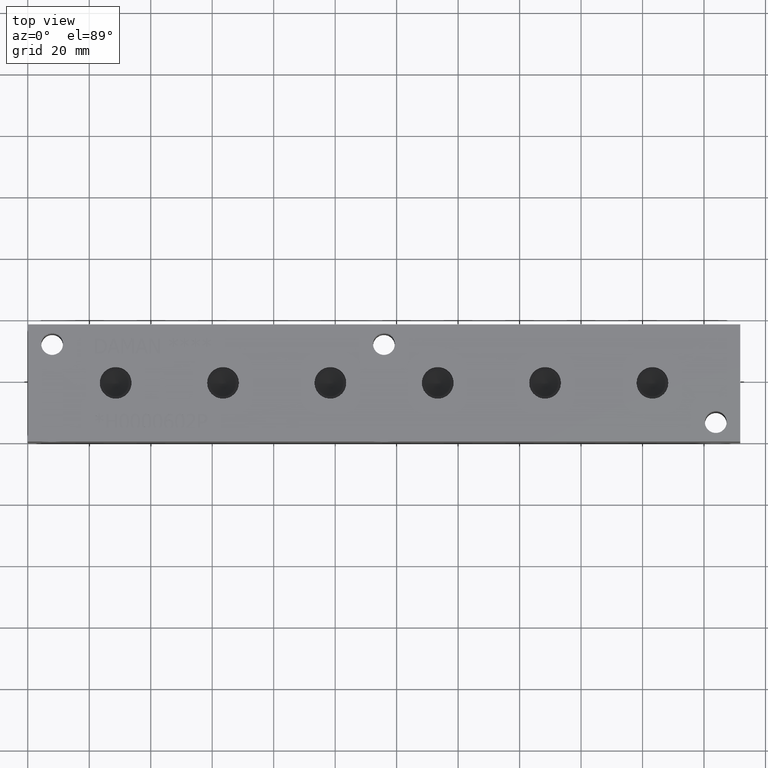
[diagram: clean part render]
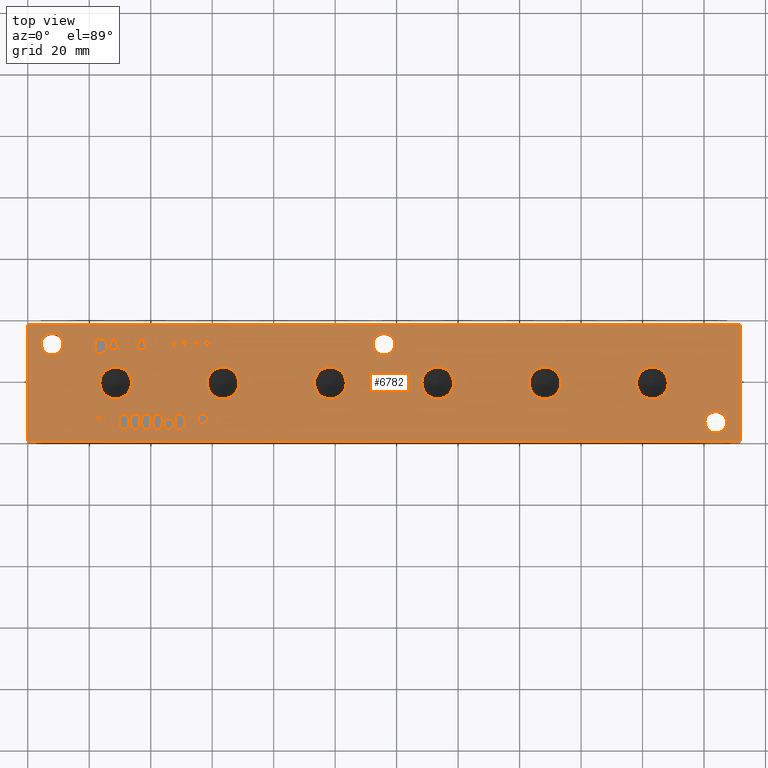
[diagram: same view with one face highlighted and labeled with its STEP entity id]
A machine part, top view. The second image highlights one B-rep face of the part: STEP entity #6782.
In plain terms, the highlighted planar face has unit normal (0, 0, 1).
Its self-contained STEP definition (entity closure, byte-faithful):
#62=CIRCLE('',#7053,3.5687);
#63=CIRCLE('',#7054,3.5687);
#64=CIRCLE('',#7055,3.5687);
#65=CIRCLE('',#7056,3.5687);
#66=CIRCLE('',#7057,3.5687);
#67=CIRCLE('',#7058,3.5687);
#68=CIRCLE('',#7059,5.165);
#69=CIRCLE('',#7060,5.165);
#70=CIRCLE('',#7061,5.165);
#71=CIRCLE('',#7062,5.165);
#72=CIRCLE('',#7063,5.165);
#73=CIRCLE('',#7064,5.165);
#74=CIRCLE('',#7065,5.165);
#75=CIRCLE('',#7066,5.165);
#76=CIRCLE('',#7067,5.165);
#77=CIRCLE('',#7068,5.165);
#78=CIRCLE('',#7069,5.165);
#79=CIRCLE('',#7070,5.165);
#143=FACE_BOUND('',#921,.T.);
#144=FACE_BOUND('',#922,.T.);
#145=FACE_BOUND('',#923,.T.);
#146=FACE_BOUND('',#924,.T.);
#147=FACE_BOUND('',#925,.T.);
#148=FACE_BOUND('',#926,.T.);
#149=FACE_BOUND('',#927,.T.);
#150=FACE_BOUND('',#928,.T.);
#151=FACE_BOUND('',#929,.T.);
#152=FACE_BOUND('',#930,.T.);
#153=FACE_BOUND('',#931,.T.);
#154=FACE_BOUND('',#932,.T.);
#155=FACE_BOUND('',#933,.T.);
#156=FACE_BOUND('',#934,.T.);
#157=FACE_BOUND('',#935,.T.);
#158=FACE_BOUND('',#936,.T.);
#159=FACE_BOUND('',#937,.T.);
#160=FACE_BOUND('',#938,.T.);
#161=FACE_BOUND('',#939,.T.);
#162=FACE_BOUND('',#940,.T.);
#163=FACE_BOUND('',#941,.T.);
#164=FACE_BOUND('',#942,.T.);
#165=FACE_BOUND('',#943,.T.);
#166=FACE_BOUND('',#944,.T.);
#167=FACE_BOUND('',#945,.T.);
#168=FACE_BOUND('',#946,.T.);
#169=FACE_BOUND('',#947,.T.);
#170=FACE_BOUND('',#948,.T.);
#249=PLANE('',#7052);
#559=FACE_OUTER_BOUND('',#920,.T.);
#920=EDGE_LOOP('',(#5029,#5030,#5031,#5032));
#921=EDGE_LOOP('',(#5033,#5034,#5035,#5036,#5037,#5038,#5039,#5040,#5041,
#5042,#5043,#5044,#5045,#5046,#5047,#5048,#5049,#5050));
#922=EDGE_LOOP('',(#5051,#5052,#5053,#5054,#5055,#5056,#5057,#5058,#5059,
#5060,#5061,#5062,#5063,#5064,#5065,#5066,#5067,#5068));
#923=EDGE_LOOP('',(#5069,#5070,#5071,#5072,#5073,#5074,#5075,#5076,#5077,
#5078,#5079,#5080,#5081));
#924=EDGE_LOOP('',(#5082,#5083,#5084,#5085,#5086,#5087,#5088,#5089));
#925=EDGE_LOOP('',(#5090,#5091,#5092,#5093,#5094,#5095,#5096));
#926=EDGE_LOOP('',(#5097,#5098,#5099,#5100,#5101,#5102,#5103,#5104));
#927=EDGE_LOOP('',(#5105,#5106,#5107,#5108,#5109,#5110,#5111,#5112,#5113,
#5114));
#928=EDGE_LOOP('',(#5115,#5116,#5117,#5118,#5119,#5120,#5121,#5122,#5123,
#5124,#5125,#5126,#5127,#5128,#5129,#5130,#5131,#5132));
#929=EDGE_LOOP('',(#5133,#5134,#5135,#5136,#5137,#5138,#5139,#5140,#5141,
#5142,#5143,#5144,#5145,#5146,#5147,#5148,#5149,#5150));
#930=EDGE_LOOP('',(#5151,#5152));
#931=EDGE_LOOP('',(#5153,#5154));
#932=EDGE_LOOP('',(#5155,#5156));
#933=EDGE_LOOP('',(#5157,#5158));
#934=EDGE_LOOP('',(#5159,#5160));
#935=EDGE_LOOP('',(#5161,#5162));
#936=EDGE_LOOP('',(#5163,#5164));
#937=EDGE_LOOP('',(#5165,#5166));
#938=EDGE_LOOP('',(#5167,#5168));
#939=EDGE_LOOP('',(#5169,#5170,#5171,#5172,#5173,#5174,#5175,#5176,#5177,
#5178,#5179,#5180,#5181,#5182,#5183,#5184,#5185));
#940=EDGE_LOOP('',(#5186,#5187,#5188,#5189));
#941=EDGE_LOOP('',(#5190,#5191,#5192,#5193,#5194,#5195,#5196,#5197,#5198,
#5199,#5200,#5201,#5202,#5203));
#942=EDGE_LOOP('',(#5204,#5205,#5206,#5207));
#943=EDGE_LOOP('',(#5208,#5209,#5210,#5211));
#944=EDGE_LOOP('',(#5212,#5213,#5214,#5215));
#945=EDGE_LOOP('',(#5216,#5217,#5218,#5219));
#946=EDGE_LOOP('',(#5220,#5221,#5222,#5223,#5224,#5225,#5226,#5227,#5228,
#5229,#5230,#5231,#5232,#5233,#5234,#5235,#5236,#5237));
#947=EDGE_LOOP('',(#5238,#5239,#5240,#5241,#5242,#5243,#5244,#5245,#5246,
#5247,#5248,#5249));
#948=EDGE_LOOP('',(#5250,#5251,#5252,#5253,#5254,#5255,#5256,#5257,#5258));
#1186=LINE('',#8799,#1847);
#1189=LINE('',#8805,#1850);
#1192=LINE('',#8811,#1853);
#1195=LINE('',#8817,#1856);
#1198=LINE('',#8823,#1859);
#1202=LINE('',#8866,#1863);
#1206=LINE('',#8874,#1867);
#1209=LINE('',#8880,#1870);
#1212=LINE('',#8886,#1873);
#1215=LINE('',#8892,#1876);
#1218=LINE('',#8898,#1879);
#1221=LINE('',#8904,#1882);
#1224=LINE('',#8910,#1885);
#1227=LINE('',#8916,#1888);
#1230=LINE('',#8922,#1891);
#1233=LINE('',#8928,#1894);
#1236=LINE('',#8933,#1897);
#1238=LINE('',#8939,#1899);
#1242=LINE('',#8947,#1903);
#1245=LINE('',#8953,#1906);
#1248=LINE('',#8959,#1909);
#1251=LINE('',#8965,#1912);
#1254=LINE('',#8971,#1915);
#1257=LINE('',#8977,#1918);
#1260=LINE('',#8983,#1921);
#1263=LINE('',#8989,#1924);
#1266=LINE('',#8995,#1927);
#1269=LINE('',#9001,#1930);
#1272=LINE('',#9007,#1933);
#1275=LINE('',#9013,#1936);
#1278=LINE('',#9019,#1939);
#1281=LINE('',#9025,#1942);
#1284=LINE('',#9031,#1945);
#1287=LINE('',#9037,#1948);
#1290=LINE('',#9042,#1951);
#1353=LINE('',#10194,#2014);
#1356=LINE('',#10200,#2017);
#1377=LINE('',#10567,#2038);
#1381=LINE('',#10575,#2042);
#1389=LINE('',#10676,#2050);
#1392=LINE('',#10682,#2053);
#1401=LINE('',#10802,#2062);
#1404=LINE('',#10807,#2065);
#1406=LINE('',#10813,#2067);
#1407=LINE('',#10815,#2068);
#1408=LINE('',#10817,#2069);
#1409=LINE('',#10818,#2070);
#1410=LINE('',#10821,#2071);
#1411=LINE('',#10823,#2072);
#1412=LINE('',#10825,#2073);
#1413=LINE('',#10827,#2074);
#1414=LINE('',#10829,#2075);
#1415=LINE('',#10831,#2076);
#1416=LINE('',#10833,#2077);
#1417=LINE('',#10835,#2078);
#1418=LINE('',#10837,#2079);
#1419=LINE('',#10839,#2080);
#1420=LINE('',#10841,#2081);
#1421=LINE('',#10843,#2082);
#1422=LINE('',#10845,#2083);
#1423=LINE('',#10847,#2084);
#1424=LINE('',#10849,#2085);
#1425=LINE('',#10851,#2086);
#1426=LINE('',#10853,#2087);
#1427=LINE('',#10854,#2088);
#1428=LINE('',#10857,#2089);
#1429=LINE('',#10859,#2090);
#1430=LINE('',#10861,#2091);
#1431=LINE('',#10863,#2092);
#1432=LINE('',#10865,#2093);
#1433=LINE('',#10867,#2094);
#1434=LINE('',#10869,#2095);
#1435=LINE('',#10871,#2096);
#1436=LINE('',#10873,#2097);
#1437=LINE('',#10875,#2098);
#1438=LINE('',#10877,#2099);
#1439=LINE('',#10879,#2100);
#1440=LINE('',#10881,#2101);
#1441=LINE('',#10883,#2102);
#1442=LINE('',#10885,#2103);
#1443=LINE('',#10887,#2104);
#1444=LINE('',#10889,#2105);
#1445=LINE('',#10890,#2106);
#1446=LINE('',#10893,#2107);
#1447=LINE('',#10895,#2108);
#1448=LINE('',#10897,#2109);
#1449=LINE('',#10899,#2110);
#1450=LINE('',#10901,#2111);
#1451=LINE('',#10903,#2112);
#1452=LINE('',#10905,#2113);
#1453=LINE('',#10907,#2114);
#1454=LINE('',#10909,#2115);
#1455=LINE('',#10911,#2116);
#1456=LINE('',#10913,#2117);
#1457=LINE('',#10915,#2118);
#1458=LINE('',#10916,#2119);
#1459=LINE('',#10919,#2120);
#1460=LINE('',#10921,#2121);
#1461=LINE('',#10923,#2122);
#1462=LINE('',#10925,#2123);
#1463=LINE('',#10927,#2124);
#1464=LINE('',#10929,#2125);
#1465=LINE('',#10931,#2126);
#1466=LINE('',#10932,#2127);
#1467=LINE('',#10950,#2128);
#1468=LINE('',#10952,#2129);
#1469=LINE('',#10954,#2130);
#1470=LINE('',#10961,#2131);
#1471=LINE('',#10963,#2132);
#1472=LINE('',#10965,#2133);
#1473=LINE('',#10967,#2134);
#1474=LINE('',#10969,#2135);
#1475=LINE('',#10971,#2136);
#1476=LINE('',#10973,#2137);
#1477=LINE('',#10974,#2138);
#1478=LINE('',#10977,#2139);
#1479=LINE('',#10979,#2140);
#1480=LINE('',#10981,#2141);
#1481=LINE('',#10983,#2142);
#1482=LINE('',#10985,#2143);
#1483=LINE('',#10987,#2144);
#1484=LINE('',#10989,#2145);
#1485=LINE('',#10991,#2146);
#1486=LINE('',#10993,#2147);
#1487=LINE('',#10994,#2148);
#1488=LINE('',#10997,#2149);
#1489=LINE('',#10999,#2150);
#1490=LINE('',#11001,#2151);
#1491=LINE('',#11003,#2152);
#1492=LINE('',#11005,#2153);
#1493=LINE('',#11007,#2154);
#1494=LINE('',#11009,#2155);
#1495=LINE('',#11011,#2156);
#1496=LINE('',#11013,#2157);
#1497=LINE('',#11015,#2158);
#1498=LINE('',#11017,#2159);
#1499=LINE('',#11019,#2160);
#1500=LINE('',#11021,#2161);
#1501=LINE('',#11023,#2162);
#1502=LINE('',#11025,#2163);
#1503=LINE('',#11027,#2164);
#1504=LINE('',#11029,#2165);
#1505=LINE('',#11030,#2166);
#1506=LINE('',#11033,#2167);
#1507=LINE('',#11035,#2168);
#1508=LINE('',#11037,#2169);
#1509=LINE('',#11039,#2170);
#1510=LINE('',#11041,#2171);
#1511=LINE('',#11043,#2172);
#1512=LINE('',#11045,#2173);
#1513=LINE('',#11047,#2174);
#1514=LINE('',#11049,#2175);
#1515=LINE('',#11051,#2176);
#1516=LINE('',#11053,#2177);
#1517=LINE('',#11055,#2178);
#1518=LINE('',#11057,#2179);
#1519=LINE('',#11059,#2180);
#1520=LINE('',#11061,#2181);
#1521=LINE('',#11063,#2182);
#1522=LINE('',#11065,#2183);
#1523=LINE('',#11066,#2184);
#1847=VECTOR('',#7356,10.);
#1850=VECTOR('',#7361,10.);
#1853=VECTOR('',#7366,10.);
#1856=VECTOR('',#7371,10.);
#1859=VECTOR('',#7376,10.);
#1863=VECTOR('',#7384,10.);
#1867=VECTOR('',#7390,10.);
#1870=VECTOR('',#7395,10.);
#1873=VECTOR('',#7400,10.);
#1876=VECTOR('',#7405,10.);
#1879=VECTOR('',#7410,10.);
#1882=VECTOR('',#7415,10.);
#1885=VECTOR('',#7420,10.);
#1888=VECTOR('',#7425,10.);
#1891=VECTOR('',#7430,10.);
#1894=VECTOR('',#7435,10.);
#1897=VECTOR('',#7440,10.);
#1899=VECTOR('',#7446,10.);
#1903=VECTOR('',#7452,10.);
#1906=VECTOR('',#7457,10.);
#1909=VECTOR('',#7462,10.);
#1912=VECTOR('',#7467,10.);
#1915=VECTOR('',#7472,10.);
#1918=VECTOR('',#7477,10.);
#1921=VECTOR('',#7482,10.);
#1924=VECTOR('',#7487,10.);
#1927=VECTOR('',#7492,10.);
#1930=VECTOR('',#7497,10.);
#1933=VECTOR('',#7502,10.);
#1936=VECTOR('',#7507,10.);
#1939=VECTOR('',#7512,10.);
#1942=VECTOR('',#7517,10.);
#1945=VECTOR('',#7522,10.);
#1948=VECTOR('',#7527,10.);
#1951=VECTOR('',#7532,10.);
#2014=VECTOR('',#7607,10.);
#2017=VECTOR('',#7612,10.);
#2038=VECTOR('',#7639,10.);
#2042=VECTOR('',#7645,10.);
#2050=VECTOR('',#7655,10.);
#2053=VECTOR('',#7660,10.);
#2062=VECTOR('',#7671,10.);
#2065=VECTOR('',#7676,10.);
#2067=VECTOR('',#7682,10.);
#2068=VECTOR('',#7683,10.);
#2069=VECTOR('',#7684,10.);
#2070=VECTOR('',#7685,10.);
#2071=VECTOR('',#7686,10.);
#2072=VECTOR('',#7687,10.);
#2073=VECTOR('',#7688,10.);
#2074=VECTOR('',#7689,10.);
#2075=VECTOR('',#7690,10.);
#2076=VECTOR('',#7691,10.);
#2077=VECTOR('',#7692,10.);
#2078=VECTOR('',#7693,10.);
#2079=VECTOR('',#7694,10.);
#2080=VECTOR('',#7695,10.);
#2081=VECTOR('',#7696,10.);
#2082=VECTOR('',#7697,10.);
#2083=VECTOR('',#7698,10.);
#2084=VECTOR('',#7699,10.);
#2085=VECTOR('',#7700,10.);
#2086=VECTOR('',#7701,10.);
#2087=VECTOR('',#7702,10.);
#2088=VECTOR('',#7703,10.);
#2089=VECTOR('',#7704,10.);
#2090=VECTOR('',#7705,10.);
#2091=VECTOR('',#7706,10.);
#2092=VECTOR('',#7707,10.);
#2093=VECTOR('',#7708,10.);
#2094=VECTOR('',#7709,10.);
#2095=VECTOR('',#7710,10.);
#2096=VECTOR('',#7711,10.);
#2097=VECTOR('',#7712,10.);
#2098=VECTOR('',#7713,10.);
#2099=VECTOR('',#7714,10.);
#2100=VECTOR('',#7715,10.);
#2101=VECTOR('',#7716,10.);
#2102=VECTOR('',#7717,10.);
#2103=VECTOR('',#7718,10.);
#2104=VECTOR('',#7719,10.);
#2105=VECTOR('',#7720,10.);
#2106=VECTOR('',#7721,10.);
#2107=VECTOR('',#7722,10.);
#2108=VECTOR('',#7723,10.);
#2109=VECTOR('',#7724,10.);
#2110=VECTOR('',#7725,10.);
#2111=VECTOR('',#7726,10.);
#2112=VECTOR('',#7727,10.);
#2113=VECTOR('',#7728,10.);
#2114=VECTOR('',#7729,10.);
#2115=VECTOR('',#7730,10.);
#2116=VECTOR('',#7731,10.);
#2117=VECTOR('',#7732,10.);
#2118=VECTOR('',#7733,10.);
#2119=VECTOR('',#7734,10.);
#2120=VECTOR('',#7735,10.);
#2121=VECTOR('',#7736,10.);
#2122=VECTOR('',#7737,10.);
#2123=VECTOR('',#7738,10.);
#2124=VECTOR('',#7739,10.);
#2125=VECTOR('',#7740,10.);
#2126=VECTOR('',#7741,10.);
#2127=VECTOR('',#7742,10.);
#2128=VECTOR('',#7743,10.);
#2129=VECTOR('',#7744,10.);
#2130=VECTOR('',#7745,10.);
#2131=VECTOR('',#7746,10.);
#2132=VECTOR('',#7747,10.);
#2133=VECTOR('',#7748,10.);
#2134=VECTOR('',#7749,10.);
#2135=VECTOR('',#7750,10.);
#2136=VECTOR('',#7751,10.);
#2137=VECTOR('',#7752,10.);
#2138=VECTOR('',#7753,10.);
#2139=VECTOR('',#7754,10.);
#2140=VECTOR('',#7755,10.);
#2141=VECTOR('',#7756,10.);
#2142=VECTOR('',#7757,10.);
#2143=VECTOR('',#7758,10.);
#2144=VECTOR('',#7759,10.);
#2145=VECTOR('',#7760,10.);
#2146=VECTOR('',#7761,10.);
#2147=VECTOR('',#7762,10.);
#2148=VECTOR('',#7763,10.);
#2149=VECTOR('',#7764,10.);
#2150=VECTOR('',#7765,10.);
#2151=VECTOR('',#7766,10.);
#2152=VECTOR('',#7767,10.);
#2153=VECTOR('',#7768,10.);
#2154=VECTOR('',#7769,10.);
#2155=VECTOR('',#7770,10.);
#2156=VECTOR('',#7771,10.);
#2157=VECTOR('',#7772,10.);
#2158=VECTOR('',#7773,10.);
#2159=VECTOR('',#7774,10.);
#2160=VECTOR('',#7775,10.);
#2161=VECTOR('',#7776,10.);
#2162=VECTOR('',#7777,10.);
#2163=VECTOR('',#7778,10.);
#2164=VECTOR('',#7779,10.);
#2165=VECTOR('',#7780,10.);
#2166=VECTOR('',#7781,10.);
#2167=VECTOR('',#7782,10.);
#2168=VECTOR('',#7783,10.);
#2169=VECTOR('',#7784,10.);
#2170=VECTOR('',#7785,10.);
#2171=VECTOR('',#7786,10.);
#2172=VECTOR('',#7787,10.);
#2173=VECTOR('',#7788,10.);
#2174=VECTOR('',#7789,10.);
#2175=VECTOR('',#7790,10.);
#2176=VECTOR('',#7791,10.);
#2177=VECTOR('',#7792,10.);
#2178=VECTOR('',#7793,10.);
#2179=VECTOR('',#7794,10.);
#2180=VECTOR('',#7795,10.);
#2181=VECTOR('',#7796,10.);
#2182=VECTOR('',#7797,10.);
#2183=VECTOR('',#7798,10.);
#2184=VECTOR('',#7799,10.);
#2500=B_SPLINE_CURVE_WITH_KNOTS('',2,(#8766,#8767,#8768,#8769),
 .UNSPECIFIED.,.F.,.F.,(3,1,3),(0.,1.,2.),.UNSPECIFIED.);
#2502=B_SPLINE_CURVE_WITH_KNOTS('',2,(#8787,#8788,#8789,#8790),
 .UNSPECIFIED.,.F.,.F.,(3,1,3),(0.,1.,2.),.UNSPECIFIED.);
#2504=B_SPLINE_CURVE_WITH_KNOTS('',2,(#8836,#8837,#8838,#8839),
 .UNSPECIFIED.,.F.,.F.,(3,1,3),(0.,1.,2.),.UNSPECIFIED.);
#2506=B_SPLINE_CURVE_WITH_KNOTS('',2,(#8854,#8855,#8856,#8857),
 .UNSPECIFIED.,.F.,.F.,(3,1,3),(0.,1.,2.),.UNSPECIFIED.);
#2524=B_SPLINE_CURVE_WITH_KNOTS('',2,(#9207,#9208,#9209,#9210),
 .UNSPECIFIED.,.F.,.F.,(3,1,3),(0.,1.,2.),.UNSPECIFIED.);
#2526=B_SPLINE_CURVE_WITH_KNOTS('',2,(#9228,#9229,#9230,#9231),
 .UNSPECIFIED.,.F.,.F.,(3,1,3),(0.,1.,2.),.UNSPECIFIED.);
#2528=B_SPLINE_CURVE_WITH_KNOTS('',2,(#9247,#9248,#9249,#9250),
 .UNSPECIFIED.,.F.,.F.,(3,1,3),(0.,1.,2.),.UNSPECIFIED.);
#2530=B_SPLINE_CURVE_WITH_KNOTS('',2,(#9265,#9266,#9267,#9268),
 .UNSPECIFIED.,.F.,.F.,(3,1,3),(0.,1.,2.),.UNSPECIFIED.);
#2548=B_SPLINE_CURVE_WITH_KNOTS('',2,(#9436,#9437,#9438,#9439),
 .UNSPECIFIED.,.F.,.F.,(3,1,3),(0.,1.,2.),.UNSPECIFIED.);
#2550=B_SPLINE_CURVE_WITH_KNOTS('',2,(#9457,#9458,#9459,#9460),
 .UNSPECIFIED.,.F.,.F.,(3,1,3),(0.,1.,2.),.UNSPECIFIED.);
#2552=B_SPLINE_CURVE_WITH_KNOTS('',2,(#9476,#9477,#9478,#9479),
 .UNSPECIFIED.,.F.,.F.,(3,1,3),(0.,1.,2.),.UNSPECIFIED.);
#2554=B_SPLINE_CURVE_WITH_KNOTS('',2,(#9494,#9495,#9496,#9497),
 .UNSPECIFIED.,.F.,.F.,(3,1,3),(0.,1.,2.),.UNSPECIFIED.);
#2572=B_SPLINE_CURVE_WITH_KNOTS('',2,(#9665,#9666,#9667,#9668),
 .UNSPECIFIED.,.F.,.F.,(3,1,3),(0.,1.,2.),.UNSPECIFIED.);
#2574=B_SPLINE_CURVE_WITH_KNOTS('',2,(#9686,#9687,#9688,#9689),
 .UNSPECIFIED.,.F.,.F.,(3,1,3),(0.,1.,2.),.UNSPECIFIED.);
#2576=B_SPLINE_CURVE_WITH_KNOTS('',2,(#9705,#9706,#9707,#9708),
 .UNSPECIFIED.,.F.,.F.,(3,1,3),(0.,1.,2.),.UNSPECIFIED.);
#2578=B_SPLINE_CURVE_WITH_KNOTS('',2,(#9723,#9724,#9725,#9726),
 .UNSPECIFIED.,.F.,.F.,(3,1,3),(0.,1.,2.),.UNSPECIFIED.);
#2596=B_SPLINE_CURVE_WITH_KNOTS('',2,(#9894,#9895,#9896,#9897),
 .UNSPECIFIED.,.F.,.F.,(3,1,3),(0.,1.,2.),.UNSPECIFIED.);
#2598=B_SPLINE_CURVE_WITH_KNOTS('',2,(#9915,#9916,#9917,#9918),
 .UNSPECIFIED.,.F.,.F.,(3,1,3),(0.,1.,2.),.UNSPECIFIED.);
#2600=B_SPLINE_CURVE_WITH_KNOTS('',2,(#9934,#9935,#9936,#9937),
 .UNSPECIFIED.,.F.,.F.,(3,1,3),(0.,1.,2.),.UNSPECIFIED.);
#2602=B_SPLINE_CURVE_WITH_KNOTS('',2,(#9952,#9953,#9954,#9955),
 .UNSPECIFIED.,.F.,.F.,(3,1,3),(0.,1.,2.),.UNSPECIFIED.);
#2618=B_SPLINE_CURVE_WITH_KNOTS('',2,(#10104,#10105,#10106,#10107),
 .UNSPECIFIED.,.F.,.F.,(3,1,3),(0.,1.,2.),.UNSPECIFIED.);
#2620=B_SPLINE_CURVE_WITH_KNOTS('',2,(#10125,#10126,#10127,#10128),
 .UNSPECIFIED.,.F.,.F.,(3,1,3),(0.,1.,2.),.UNSPECIFIED.);
#2622=B_SPLINE_CURVE_WITH_KNOTS('',2,(#10144,#10145,#10146,#10147),
 .UNSPECIFIED.,.F.,.F.,(3,1,3),(0.,1.,2.),.UNSPECIFIED.);
#2624=B_SPLINE_CURVE_WITH_KNOTS('',2,(#10163,#10164,#10165,#10166),
 .UNSPECIFIED.,.F.,.F.,(3,1,3),(0.,1.,2.),.UNSPECIFIED.);
#2626=B_SPLINE_CURVE_WITH_KNOTS('',2,(#10182,#10183,#10184,#10185),
 .UNSPECIFIED.,.F.,.F.,(3,1,3),(0.,1.,2.),.UNSPECIFIED.);
#2628=B_SPLINE_CURVE_WITH_KNOTS('',2,(#10213,#10214,#10215,#10216),
 .UNSPECIFIED.,.F.,.F.,(3,1,3),(0.,1.,2.),.UNSPECIFIED.);
#2630=B_SPLINE_CURVE_WITH_KNOTS('',2,(#10232,#10233,#10234,#10235),
 .UNSPECIFIED.,.F.,.F.,(3,1,3),(0.,1.,2.),.UNSPECIFIED.);
#2632=B_SPLINE_CURVE_WITH_KNOTS('',2,(#10251,#10252,#10253,#10254),
 .UNSPECIFIED.,.F.,.F.,(3,1,3),(0.,1.,2.),.UNSPECIFIED.);
#2634=B_SPLINE_CURVE_WITH_KNOTS('',2,(#10270,#10271,#10272,#10273),
 .UNSPECIFIED.,.F.,.F.,(3,1,3),(0.,1.,2.),.UNSPECIFIED.);
#2636=B_SPLINE_CURVE_WITH_KNOTS('',2,(#10289,#10290,#10291,#10292),
 .UNSPECIFIED.,.F.,.F.,(3,1,3),(0.,1.,2.),.UNSPECIFIED.);
#2638=B_SPLINE_CURVE_WITH_KNOTS('',2,(#10308,#10309,#10310,#10311),
 .UNSPECIFIED.,.F.,.F.,(3,1,3),(0.,1.,2.),.UNSPECIFIED.);
#2640=B_SPLINE_CURVE_WITH_KNOTS('',2,(#10326,#10327,#10328,#10329),
 .UNSPECIFIED.,.F.,.F.,(3,1,3),(0.,1.,2.),.UNSPECIFIED.);
#2658=B_SPLINE_CURVE_WITH_KNOTS('',2,(#10497,#10498,#10499,#10500),
 .UNSPECIFIED.,.F.,.F.,(3,1,3),(0.,1.,2.),.UNSPECIFIED.);
#2660=B_SPLINE_CURVE_WITH_KNOTS('',2,(#10518,#10519,#10520,#10521),
 .UNSPECIFIED.,.F.,.F.,(3,1,3),(0.,1.,2.),.UNSPECIFIED.);
#2662=B_SPLINE_CURVE_WITH_KNOTS('',2,(#10537,#10538,#10539,#10540),
 .UNSPECIFIED.,.F.,.F.,(3,1,3),(0.,1.,2.),.UNSPECIFIED.);
#2664=B_SPLINE_CURVE_WITH_KNOTS('',2,(#10555,#10556,#10557,#10558),
 .UNSPECIFIED.,.F.,.F.,(3,1,3),(0.,1.,2.),.UNSPECIFIED.);
#2666=B_SPLINE_CURVE_WITH_KNOTS('',2,(#10588,#10589,#10590,#10591),
 .UNSPECIFIED.,.F.,.F.,(3,1,3),(0.,1.,2.),.UNSPECIFIED.);
#2668=B_SPLINE_CURVE_WITH_KNOTS('',2,(#10607,#10608,#10609,#10610),
 .UNSPECIFIED.,.F.,.F.,(3,1,3),(0.,1.,2.),.UNSPECIFIED.);
#2670=B_SPLINE_CURVE_WITH_KNOTS('',2,(#10626,#10627,#10628,#10629),
 .UNSPECIFIED.,.F.,.F.,(3,1,3),(0.,1.,2.),.UNSPECIFIED.);
#2672=B_SPLINE_CURVE_WITH_KNOTS('',2,(#10645,#10646,#10647,#10648),
 .UNSPECIFIED.,.F.,.F.,(3,1,3),(0.,1.,2.),.UNSPECIFIED.);
#2674=B_SPLINE_CURVE_WITH_KNOTS('',2,(#10664,#10665,#10666,#10667),
 .UNSPECIFIED.,.F.,.F.,(3,1,3),(0.,1.,2.),.UNSPECIFIED.);
#2676=B_SPLINE_CURVE_WITH_KNOTS('',2,(#10695,#10696,#10697,#10698),
 .UNSPECIFIED.,.F.,.F.,(3,1,3),(0.,1.,2.),.UNSPECIFIED.);
#2678=B_SPLINE_CURVE_WITH_KNOTS('',2,(#10714,#10715,#10716,#10717),
 .UNSPECIFIED.,.F.,.F.,(3,1,3),(0.,1.,2.),.UNSPECIFIED.);
#2680=B_SPLINE_CURVE_WITH_KNOTS('',2,(#10733,#10734,#10735,#10736),
 .UNSPECIFIED.,.F.,.F.,(3,1,3),(0.,1.,2.),.UNSPECIFIED.);
#2682=B_SPLINE_CURVE_WITH_KNOTS('',2,(#10752,#10753,#10754,#10755),
 .UNSPECIFIED.,.F.,.F.,(3,1,3),(0.,1.,2.),.UNSPECIFIED.);
#2684=B_SPLINE_CURVE_WITH_KNOTS('',2,(#10771,#10772,#10773,#10774),
 .UNSPECIFIED.,.F.,.F.,(3,1,3),(0.,1.,2.),.UNSPECIFIED.);
#2686=B_SPLINE_CURVE_WITH_KNOTS('',2,(#10790,#10791,#10792,#10793),
 .UNSPECIFIED.,.F.,.F.,(3,1,3),(0.,1.,2.),.UNSPECIFIED.);
#2688=B_SPLINE_CURVE_WITH_KNOTS('',2,(#10935,#10936,#10937,#10938),
 .UNSPECIFIED.,.F.,.F.,(3,1,3),(0.,1.,2.),.UNSPECIFIED.);
#2689=B_SPLINE_CURVE_WITH_KNOTS('',2,(#10940,#10941,#10942,#10943),
 .UNSPECIFIED.,.F.,.F.,(3,1,3),(0.,1.,2.),.UNSPECIFIED.);
#2690=B_SPLINE_CURVE_WITH_KNOTS('',2,(#10945,#10946,#10947,#10948),
 .UNSPECIFIED.,.F.,.F.,(3,1,3),(0.,1.,2.),.UNSPECIFIED.);
#2691=B_SPLINE_CURVE_WITH_KNOTS('',2,(#10955,#10956,#10957,#10958),
 .UNSPECIFIED.,.F.,.F.,(3,1,3),(0.,1.,2.),.UNSPECIFIED.);
#2718=VERTEX_POINT('',#8764);
#2719=VERTEX_POINT('',#8765);
#2722=VERTEX_POINT('',#8786);
#2724=VERTEX_POINT('',#8798);
#2726=VERTEX_POINT('',#8804);
#2728=VERTEX_POINT('',#8810);
#2730=VERTEX_POINT('',#8816);
#2732=VERTEX_POINT('',#8822);
#2734=VERTEX_POINT('',#8835);
#2736=VERTEX_POINT('',#8864);
#2737=VERTEX_POINT('',#8865);
#2740=VERTEX_POINT('',#8873);
#2742=VERTEX_POINT('',#8879);
#2744=VERTEX_POINT('',#8885);
#2746=VERTEX_POINT('',#8891);
#2748=VERTEX_POINT('',#8897);
#2750=VERTEX_POINT('',#8903);
#2752=VERTEX_POINT('',#8909);
#2754=VERTEX_POINT('',#8915);
#2756=VERTEX_POINT('',#8921);
#2758=VERTEX_POINT('',#8927);
#2760=VERTEX_POINT('',#8937);
#2761=VERTEX_POINT('',#8938);
#2764=VERTEX_POINT('',#8946);
#2766=VERTEX_POINT('',#8952);
#2768=VERTEX_POINT('',#8958);
#2770=VERTEX_POINT('',#8964);
#2772=VERTEX_POINT('',#8970);
#2774=VERTEX_POINT('',#8976);
#2776=VERTEX_POINT('',#8982);
#2778=VERTEX_POINT('',#8988);
#2780=VERTEX_POINT('',#8994);
#2782=VERTEX_POINT('',#9000);
#2784=VERTEX_POINT('',#9006);
#2786=VERTEX_POINT('',#9012);
#2788=VERTEX_POINT('',#9018);
#2790=VERTEX_POINT('',#9024);
#2792=VERTEX_POINT('',#9030);
#2794=VERTEX_POINT('',#9036);
#2812=VERTEX_POINT('',#9205);
#2813=VERTEX_POINT('',#9206);
#2816=VERTEX_POINT('',#9227);
#2818=VERTEX_POINT('',#9246);
#2836=VERTEX_POINT('',#9434);
#2837=VERTEX_POINT('',#9435);
#2840=VERTEX_POINT('',#9456);
#2842=VERTEX_POINT('',#9475);
#2860=VERTEX_POINT('',#9663);
#2861=VERTEX_POINT('',#9664);
#2864=VERTEX_POINT('',#9685);
#2866=VERTEX_POINT('',#9704);
#2884=VERTEX_POINT('',#9892);
#2885=VERTEX_POINT('',#9893);
#2888=VERTEX_POINT('',#9914);
#2890=VERTEX_POINT('',#9933);
#2906=VERTEX_POINT('',#10102);
#2907=VERTEX_POINT('',#10103);
#2910=VERTEX_POINT('',#10124);
#2912=VERTEX_POINT('',#10143);
#2914=VERTEX_POINT('',#10162);
#2916=VERTEX_POINT('',#10181);
#2918=VERTEX_POINT('',#10193);
#2920=VERTEX_POINT('',#10199);
#2922=VERTEX_POINT('',#10212);
#2924=VERTEX_POINT('',#10231);
#2926=VERTEX_POINT('',#10250);
#2928=VERTEX_POINT('',#10269);
#2930=VERTEX_POINT('',#10288);
#2932=VERTEX_POINT('',#10307);
#2950=VERTEX_POINT('',#10495);
#2951=VERTEX_POINT('',#10496);
#2954=VERTEX_POINT('',#10517);
#2956=VERTEX_POINT('',#10536);
#2958=VERTEX_POINT('',#10565);
#2959=VERTEX_POINT('',#10566);
#2962=VERTEX_POINT('',#10574);
#2964=VERTEX_POINT('',#10587);
#2966=VERTEX_POINT('',#10606);
#2968=VERTEX_POINT('',#10625);
#2970=VERTEX_POINT('',#10644);
#2972=VERTEX_POINT('',#10663);
#2974=VERTEX_POINT('',#10675);
#2976=VERTEX_POINT('',#10681);
#2978=VERTEX_POINT('',#10694);
#2980=VERTEX_POINT('',#10713);
#2982=VERTEX_POINT('',#10732);
#2984=VERTEX_POINT('',#10751);
#2986=VERTEX_POINT('',#10770);
#2988=VERTEX_POINT('',#10789);
#2990=VERTEX_POINT('',#10801);
#2992=VERTEX_POINT('',#10811);
#2993=VERTEX_POINT('',#10812);
#2994=VERTEX_POINT('',#10814);
#2995=VERTEX_POINT('',#10816);
#2996=VERTEX_POINT('',#10819);
#2997=VERTEX_POINT('',#10820);
#2998=VERTEX_POINT('',#10822);
#2999=VERTEX_POINT('',#10824);
#3000=VERTEX_POINT('',#10826);
#3001=VERTEX_POINT('',#10828);
#3002=VERTEX_POINT('',#10830);
#3003=VERTEX_POINT('',#10832);
#3004=VERTEX_POINT('',#10834);
#3005=VERTEX_POINT('',#10836);
#3006=VERTEX_POINT('',#10838);
#3007=VERTEX_POINT('',#10840);
#3008=VERTEX_POINT('',#10842);
#3009=VERTEX_POINT('',#10844);
#3010=VERTEX_POINT('',#10846);
#3011=VERTEX_POINT('',#10848);
#3012=VERTEX_POINT('',#10850);
#3013=VERTEX_POINT('',#10852);
#3014=VERTEX_POINT('',#10855);
#3015=VERTEX_POINT('',#10856);
#3016=VERTEX_POINT('',#10858);
#3017=VERTEX_POINT('',#10860);
#3018=VERTEX_POINT('',#10862);
#3019=VERTEX_POINT('',#10864);
#3020=VERTEX_POINT('',#10866);
#3021=VERTEX_POINT('',#10868);
#3022=VERTEX_POINT('',#10870);
#3023=VERTEX_POINT('',#10872);
#3024=VERTEX_POINT('',#10874);
#3025=VERTEX_POINT('',#10876);
#3026=VERTEX_POINT('',#10878);
#3027=VERTEX_POINT('',#10880);
#3028=VERTEX_POINT('',#10882);
#3029=VERTEX_POINT('',#10884);
#3030=VERTEX_POINT('',#10886);
#3031=VERTEX_POINT('',#10888);
#3032=VERTEX_POINT('',#10891);
#3033=VERTEX_POINT('',#10892);
#3034=VERTEX_POINT('',#10894);
#3035=VERTEX_POINT('',#10896);
#3036=VERTEX_POINT('',#10898);
#3037=VERTEX_POINT('',#10900);
#3038=VERTEX_POINT('',#10902);
#3039=VERTEX_POINT('',#10904);
#3040=VERTEX_POINT('',#10906);
#3041=VERTEX_POINT('',#10908);
#3042=VERTEX_POINT('',#10910);
#3043=VERTEX_POINT('',#10912);
#3044=VERTEX_POINT('',#10914);
#3045=VERTEX_POINT('',#10917);
#3046=VERTEX_POINT('',#10918);
#3047=VERTEX_POINT('',#10920);
#3048=VERTEX_POINT('',#10922);
#3049=VERTEX_POINT('',#10924);
#3050=VERTEX_POINT('',#10926);
#3051=VERTEX_POINT('',#10928);
#3052=VERTEX_POINT('',#10930);
#3053=VERTEX_POINT('',#10933);
#3054=VERTEX_POINT('',#10934);
#3055=VERTEX_POINT('',#10939);
#3056=VERTEX_POINT('',#10944);
#3057=VERTEX_POINT('',#10949);
#3058=VERTEX_POINT('',#10951);
#3059=VERTEX_POINT('',#10953);
#3060=VERTEX_POINT('',#10959);
#3061=VERTEX_POINT('',#10960);
#3062=VERTEX_POINT('',#10962);
#3063=VERTEX_POINT('',#10964);
#3064=VERTEX_POINT('',#10966);
#3065=VERTEX_POINT('',#10968);
#3066=VERTEX_POINT('',#10970);
#3067=VERTEX_POINT('',#10972);
#3068=VERTEX_POINT('',#10975);
#3069=VERTEX_POINT('',#10976);
#3070=VERTEX_POINT('',#10978);
#3071=VERTEX_POINT('',#10980);
#3072=VERTEX_POINT('',#10982);
#3073=VERTEX_POINT('',#10984);
#3074=VERTEX_POINT('',#10986);
#3075=VERTEX_POINT('',#10988);
#3076=VERTEX_POINT('',#10990);
#3077=VERTEX_POINT('',#10992);
#3078=VERTEX_POINT('',#10995);
#3079=VERTEX_POINT('',#10996);
#3080=VERTEX_POINT('',#10998);
#3081=VERTEX_POINT('',#11000);
#3082=VERTEX_POINT('',#11002);
#3083=VERTEX_POINT('',#11004);
#3084=VERTEX_POINT('',#11006);
#3085=VERTEX_POINT('',#11008);
#3086=VERTEX_POINT('',#11010);
#3087=VERTEX_POINT('',#11012);
#3088=VERTEX_POINT('',#11014);
#3089=VERTEX_POINT('',#11016);
#3090=VERTEX_POINT('',#11018);
#3091=VERTEX_POINT('',#11020);
#3092=VERTEX_POINT('',#11022);
#3093=VERTEX_POINT('',#11024);
#3094=VERTEX_POINT('',#11026);
#3095=VERTEX_POINT('',#11028);
#3096=VERTEX_POINT('',#11031);
#3097=VERTEX_POINT('',#11032);
#3098=VERTEX_POINT('',#11034);
#3099=VERTEX_POINT('',#11036);
#3100=VERTEX_POINT('',#11038);
#3101=VERTEX_POINT('',#11040);
#3102=VERTEX_POINT('',#11042);
#3103=VERTEX_POINT('',#11044);
#3104=VERTEX_POINT('',#11046);
#3105=VERTEX_POINT('',#11048);
#3106=VERTEX_POINT('',#11050);
#3107=VERTEX_POINT('',#11052);
#3108=VERTEX_POINT('',#11054);
#3109=VERTEX_POINT('',#11056);
#3110=VERTEX_POINT('',#11058);
#3111=VERTEX_POINT('',#11060);
#3112=VERTEX_POINT('',#11062);
#3113=VERTEX_POINT('',#11064);
#3114=VERTEX_POINT('',#11067);
#3115=VERTEX_POINT('',#11068);
#3116=VERTEX_POINT('',#11071);
#3117=VERTEX_POINT('',#11072);
#3118=VERTEX_POINT('',#11075);
#3119=VERTEX_POINT('',#11076);
#3120=VERTEX_POINT('',#11079);
#3121=VERTEX_POINT('',#11080);
#3122=VERTEX_POINT('',#11083);
#3123=VERTEX_POINT('',#11084);
#3124=VERTEX_POINT('',#11087);
#3125=VERTEX_POINT('',#11088);
#3126=VERTEX_POINT('',#11091);
#3127=VERTEX_POINT('',#11092);
#3128=VERTEX_POINT('',#11095);
#3129=VERTEX_POINT('',#11096);
#3130=VERTEX_POINT('',#11099);
#3131=VERTEX_POINT('',#11100);
#3371=EDGE_CURVE('',#2718,#2719,#2500,.T.);
#3375=EDGE_CURVE('',#2722,#2718,#2502,.T.);
#3378=EDGE_CURVE('',#2724,#2722,#1186,.T.);
#3381=EDGE_CURVE('',#2726,#2724,#1189,.T.);
#3384=EDGE_CURVE('',#2728,#2726,#1192,.T.);
#3387=EDGE_CURVE('',#2730,#2728,#1195,.T.);
#3390=EDGE_CURVE('',#2732,#2730,#1198,.T.);
#3393=EDGE_CURVE('',#2734,#2732,#2504,.T.);
#3396=EDGE_CURVE('',#2719,#2734,#2506,.T.);
#3398=EDGE_CURVE('',#2736,#2737,#1202,.T.);
#3402=EDGE_CURVE('',#2740,#2736,#1206,.T.);
#3405=EDGE_CURVE('',#2742,#2740,#1209,.T.);
#3408=EDGE_CURVE('',#2744,#2742,#1212,.T.);
#3411=EDGE_CURVE('',#2746,#2744,#1215,.T.);
#3414=EDGE_CURVE('',#2748,#2746,#1218,.T.);
#3417=EDGE_CURVE('',#2750,#2748,#1221,.T.);
#3420=EDGE_CURVE('',#2752,#2750,#1224,.T.);
#3423=EDGE_CURVE('',#2754,#2752,#1227,.T.);
#3426=EDGE_CURVE('',#2756,#2754,#1230,.T.);
#3429=EDGE_CURVE('',#2758,#2756,#1233,.T.);
#3432=EDGE_CURVE('',#2737,#2758,#1236,.T.);
#3434=EDGE_CURVE('',#2760,#2761,#1238,.T.);
#3438=EDGE_CURVE('',#2764,#2760,#1242,.T.);
#3441=EDGE_CURVE('',#2766,#2764,#1245,.T.);
#3444=EDGE_CURVE('',#2768,#2766,#1248,.T.);
#3447=EDGE_CURVE('',#2770,#2768,#1251,.T.);
#3450=EDGE_CURVE('',#2772,#2770,#1254,.T.);
#3453=EDGE_CURVE('',#2774,#2772,#1257,.T.);
#3456=EDGE_CURVE('',#2776,#2774,#1260,.T.);
#3459=EDGE_CURVE('',#2778,#2776,#1263,.T.);
#3462=EDGE_CURVE('',#2780,#2778,#1266,.T.);
#3465=EDGE_CURVE('',#2782,#2780,#1269,.T.);
#3468=EDGE_CURVE('',#2784,#2782,#1272,.T.);
#3471=EDGE_CURVE('',#2786,#2784,#1275,.T.);
#3474=EDGE_CURVE('',#2788,#2786,#1278,.T.);
#3477=EDGE_CURVE('',#2790,#2788,#1281,.T.);
#3480=EDGE_CURVE('',#2792,#2790,#1284,.T.);
#3483=EDGE_CURVE('',#2794,#2792,#1287,.T.);
#3486=EDGE_CURVE('',#2761,#2794,#1290,.T.);
#3512=EDGE_CURVE('',#2812,#2813,#2524,.T.);
#3516=EDGE_CURVE('',#2816,#2812,#2526,.T.);
#3519=EDGE_CURVE('',#2818,#2816,#2528,.T.);
#3522=EDGE_CURVE('',#2813,#2818,#2530,.T.);
#3548=EDGE_CURVE('',#2836,#2837,#2548,.T.);
#3552=EDGE_CURVE('',#2840,#2836,#2550,.T.);
#3555=EDGE_CURVE('',#2842,#2840,#2552,.T.);
#3558=EDGE_CURVE('',#2837,#2842,#2554,.T.);
#3584=EDGE_CURVE('',#2860,#2861,#2572,.T.);
#3588=EDGE_CURVE('',#2864,#2860,#2574,.T.);
#3591=EDGE_CURVE('',#2866,#2864,#2576,.T.);
#3594=EDGE_CURVE('',#2861,#2866,#2578,.T.);
#3620=EDGE_CURVE('',#2884,#2885,#2596,.T.);
#3624=EDGE_CURVE('',#2888,#2884,#2598,.T.);
#3627=EDGE_CURVE('',#2890,#2888,#2600,.T.);
#3630=EDGE_CURVE('',#2885,#2890,#2602,.T.);
#3653=EDGE_CURVE('',#2906,#2907,#2618,.T.);
#3657=EDGE_CURVE('',#2910,#2906,#2620,.T.);
#3660=EDGE_CURVE('',#2912,#2910,#2622,.T.);
#3663=EDGE_CURVE('',#2914,#2912,#2624,.T.);
#3666=EDGE_CURVE('',#2916,#2914,#2626,.T.);
#3669=EDGE_CURVE('',#2918,#2916,#1353,.T.);
#3672=EDGE_CURVE('',#2920,#2918,#1356,.T.);
#3675=EDGE_CURVE('',#2922,#2920,#2628,.T.);
#3678=EDGE_CURVE('',#2924,#2922,#2630,.T.);
#3681=EDGE_CURVE('',#2926,#2924,#2632,.T.);
#3684=EDGE_CURVE('',#2928,#2926,#2634,.T.);
#3687=EDGE_CURVE('',#2930,#2928,#2636,.T.);
#3690=EDGE_CURVE('',#2932,#2930,#2638,.T.);
#3693=EDGE_CURVE('',#2907,#2932,#2640,.T.);
#3719=EDGE_CURVE('',#2950,#2951,#2658,.T.);
#3723=EDGE_CURVE('',#2954,#2950,#2660,.T.);
#3726=EDGE_CURVE('',#2956,#2954,#2662,.T.);
#3729=EDGE_CURVE('',#2951,#2956,#2664,.T.);
#3731=EDGE_CURVE('',#2958,#2959,#1377,.T.);
#3735=EDGE_CURVE('',#2962,#2958,#1381,.T.);
#3738=EDGE_CURVE('',#2964,#2962,#2666,.T.);
#3741=EDGE_CURVE('',#2966,#2964,#2668,.T.);
#3744=EDGE_CURVE('',#2968,#2966,#2670,.T.);
#3747=EDGE_CURVE('',#2970,#2968,#2672,.T.);
#3750=EDGE_CURVE('',#2972,#2970,#2674,.T.);
#3753=EDGE_CURVE('',#2974,#2972,#1389,.T.);
#3756=EDGE_CURVE('',#2976,#2974,#1392,.T.);
#3759=EDGE_CURVE('',#2978,#2976,#2676,.T.);
#3762=EDGE_CURVE('',#2980,#2978,#2678,.T.);
#3765=EDGE_CURVE('',#2982,#2980,#2680,.T.);
#3768=EDGE_CURVE('',#2984,#2982,#2682,.T.);
#3771=EDGE_CURVE('',#2986,#2984,#2684,.T.);
#3774=EDGE_CURVE('',#2988,#2986,#2686,.T.);
#3777=EDGE_CURVE('',#2990,#2988,#1401,.T.);
#3780=EDGE_CURVE('',#2959,#2990,#1404,.T.);
#3782=EDGE_CURVE('',#2992,#2993,#1406,.T.);
#3783=EDGE_CURVE('',#2993,#2994,#1407,.T.);
#3784=EDGE_CURVE('',#2994,#2995,#1408,.T.);
#3785=EDGE_CURVE('',#2995,#2992,#1409,.T.);
#3786=EDGE_CURVE('',#2996,#2997,#1410,.T.);
#3787=EDGE_CURVE('',#2997,#2998,#1411,.T.);
#3788=EDGE_CURVE('',#2998,#2999,#1412,.T.);
#3789=EDGE_CURVE('',#2999,#3000,#1413,.T.);
#3790=EDGE_CURVE('',#3000,#3001,#1414,.T.);
#3791=EDGE_CURVE('',#3001,#3002,#1415,.T.);
#3792=EDGE_CURVE('',#3002,#3003,#1416,.T.);
#3793=EDGE_CURVE('',#3003,#3004,#1417,.T.);
#3794=EDGE_CURVE('',#3004,#3005,#1418,.T.);
#3795=EDGE_CURVE('',#3005,#3006,#1419,.T.);
#3796=EDGE_CURVE('',#3006,#3007,#1420,.T.);
#3797=EDGE_CURVE('',#3007,#3008,#1421,.T.);
#3798=EDGE_CURVE('',#3008,#3009,#1422,.T.);
#3799=EDGE_CURVE('',#3009,#3010,#1423,.T.);
#3800=EDGE_CURVE('',#3010,#3011,#1424,.T.);
#3801=EDGE_CURVE('',#3011,#3012,#1425,.T.);
#3802=EDGE_CURVE('',#3012,#3013,#1426,.T.);
#3803=EDGE_CURVE('',#3013,#2996,#1427,.T.);
#3804=EDGE_CURVE('',#3014,#3015,#1428,.T.);
#3805=EDGE_CURVE('',#3015,#3016,#1429,.T.);
#3806=EDGE_CURVE('',#3016,#3017,#1430,.T.);
#3807=EDGE_CURVE('',#3017,#3018,#1431,.T.);
#3808=EDGE_CURVE('',#3018,#3019,#1432,.T.);
#3809=EDGE_CURVE('',#3019,#3020,#1433,.T.);
#3810=EDGE_CURVE('',#3020,#3021,#1434,.T.);
#3811=EDGE_CURVE('',#3021,#3022,#1435,.T.);
#3812=EDGE_CURVE('',#3022,#3023,#1436,.T.);
#3813=EDGE_CURVE('',#3023,#3024,#1437,.T.);
#3814=EDGE_CURVE('',#3024,#3025,#1438,.T.);
#3815=EDGE_CURVE('',#3025,#3026,#1439,.T.);
#3816=EDGE_CURVE('',#3026,#3027,#1440,.T.);
#3817=EDGE_CURVE('',#3027,#3028,#1441,.T.);
#3818=EDGE_CURVE('',#3028,#3029,#1442,.T.);
#3819=EDGE_CURVE('',#3029,#3030,#1443,.T.);
#3820=EDGE_CURVE('',#3030,#3031,#1444,.T.);
#3821=EDGE_CURVE('',#3031,#3014,#1445,.T.);
#3822=EDGE_CURVE('',#3032,#3033,#1446,.T.);
#3823=EDGE_CURVE('',#3033,#3034,#1447,.T.);
#3824=EDGE_CURVE('',#3034,#3035,#1448,.T.);
#3825=EDGE_CURVE('',#3035,#3036,#1449,.T.);
#3826=EDGE_CURVE('',#3036,#3037,#1450,.T.);
#3827=EDGE_CURVE('',#3037,#3038,#1451,.T.);
#3828=EDGE_CURVE('',#3038,#3039,#1452,.T.);
#3829=EDGE_CURVE('',#3039,#3040,#1453,.T.);
#3830=EDGE_CURVE('',#3040,#3041,#1454,.T.);
#3831=EDGE_CURVE('',#3041,#3042,#1455,.T.);
#3832=EDGE_CURVE('',#3042,#3043,#1456,.T.);
#3833=EDGE_CURVE('',#3043,#3044,#1457,.T.);
#3834=EDGE_CURVE('',#3044,#3032,#1458,.T.);
#3835=EDGE_CURVE('',#3045,#3046,#1459,.T.);
#3836=EDGE_CURVE('',#3046,#3047,#1460,.T.);
#3837=EDGE_CURVE('',#3047,#3048,#1461,.T.);
#3838=EDGE_CURVE('',#3048,#3049,#1462,.T.);
#3839=EDGE_CURVE('',#3049,#3050,#1463,.T.);
#3840=EDGE_CURVE('',#3050,#3051,#1464,.T.);
#3841=EDGE_CURVE('',#3051,#3052,#1465,.T.);
#3842=EDGE_CURVE('',#3052,#3045,#1466,.T.);
#3843=EDGE_CURVE('',#3053,#3054,#2688,.T.);
#3844=EDGE_CURVE('',#3054,#3055,#2689,.T.);
#3845=EDGE_CURVE('',#3055,#3056,#2690,.T.);
#3846=EDGE_CURVE('',#3056,#3057,#1467,.T.);
#3847=EDGE_CURVE('',#3057,#3058,#1468,.T.);
#3848=EDGE_CURVE('',#3058,#3059,#1469,.T.);
#3849=EDGE_CURVE('',#3059,#3053,#2691,.T.);
#3850=EDGE_CURVE('',#3060,#3061,#1470,.T.);
#3851=EDGE_CURVE('',#3061,#3062,#1471,.T.);
#3852=EDGE_CURVE('',#3062,#3063,#1472,.T.);
#3853=EDGE_CURVE('',#3063,#3064,#1473,.T.);
#3854=EDGE_CURVE('',#3064,#3065,#1474,.T.);
#3855=EDGE_CURVE('',#3065,#3066,#1475,.T.);
#3856=EDGE_CURVE('',#3066,#3067,#1476,.T.);
#3857=EDGE_CURVE('',#3067,#3060,#1477,.T.);
#3858=EDGE_CURVE('',#3068,#3069,#1478,.T.);
#3859=EDGE_CURVE('',#3069,#3070,#1479,.T.);
#3860=EDGE_CURVE('',#3070,#3071,#1480,.T.);
#3861=EDGE_CURVE('',#3071,#3072,#1481,.T.);
#3862=EDGE_CURVE('',#3072,#3073,#1482,.T.);
#3863=EDGE_CURVE('',#3073,#3074,#1483,.T.);
#3864=EDGE_CURVE('',#3074,#3075,#1484,.T.);
#3865=EDGE_CURVE('',#3075,#3076,#1485,.T.);
#3866=EDGE_CURVE('',#3076,#3077,#1486,.T.);
#3867=EDGE_CURVE('',#3077,#3068,#1487,.T.);
#3868=EDGE_CURVE('',#3078,#3079,#1488,.T.);
#3869=EDGE_CURVE('',#3079,#3080,#1489,.T.);
#3870=EDGE_CURVE('',#3080,#3081,#1490,.T.);
#3871=EDGE_CURVE('',#3081,#3082,#1491,.T.);
#3872=EDGE_CURVE('',#3082,#3083,#1492,.T.);
#3873=EDGE_CURVE('',#3083,#3084,#1493,.T.);
#3874=EDGE_CURVE('',#3084,#3085,#1494,.T.);
#3875=EDGE_CURVE('',#3085,#3086,#1495,.T.);
#3876=EDGE_CURVE('',#3086,#3087,#1496,.T.);
#3877=EDGE_CURVE('',#3087,#3088,#1497,.T.);
#3878=EDGE_CURVE('',#3088,#3089,#1498,.T.);
#3879=EDGE_CURVE('',#3089,#3090,#1499,.T.);
#3880=EDGE_CURVE('',#3090,#3091,#1500,.T.);
#3881=EDGE_CURVE('',#3091,#3092,#1501,.T.);
#3882=EDGE_CURVE('',#3092,#3093,#1502,.T.);
#3883=EDGE_CURVE('',#3093,#3094,#1503,.T.);
#3884=EDGE_CURVE('',#3094,#3095,#1504,.T.);
#3885=EDGE_CURVE('',#3095,#3078,#1505,.T.);
#3886=EDGE_CURVE('',#3096,#3097,#1506,.T.);
#3887=EDGE_CURVE('',#3097,#3098,#1507,.T.);
#3888=EDGE_CURVE('',#3098,#3099,#1508,.T.);
#3889=EDGE_CURVE('',#3099,#3100,#1509,.T.);
#3890=EDGE_CURVE('',#3100,#3101,#1510,.T.);
#3891=EDGE_CURVE('',#3101,#3102,#1511,.T.);
#3892=EDGE_CURVE('',#3102,#3103,#1512,.T.);
#3893=EDGE_CURVE('',#3103,#3104,#1513,.T.);
#3894=EDGE_CURVE('',#3104,#3105,#1514,.T.);
#3895=EDGE_CURVE('',#3105,#3106,#1515,.T.);
#3896=EDGE_CURVE('',#3106,#3107,#1516,.T.);
#3897=EDGE_CURVE('',#3107,#3108,#1517,.T.);
#3898=EDGE_CURVE('',#3108,#3109,#1518,.T.);
#3899=EDGE_CURVE('',#3109,#3110,#1519,.T.);
#3900=EDGE_CURVE('',#3110,#3111,#1520,.T.);
#3901=EDGE_CURVE('',#3111,#3112,#1521,.T.);
#3902=EDGE_CURVE('',#3112,#3113,#1522,.T.);
#3903=EDGE_CURVE('',#3113,#3096,#1523,.T.);
#3904=EDGE_CURVE('',#3114,#3115,#62,.T.);
#3905=EDGE_CURVE('',#3115,#3114,#63,.T.);
#3906=EDGE_CURVE('',#3116,#3117,#64,.T.);
#3907=EDGE_CURVE('',#3117,#3116,#65,.T.);
#3908=EDGE_CURVE('',#3118,#3119,#66,.T.);
#3909=EDGE_CURVE('',#3119,#3118,#67,.T.);
#3910=EDGE_CURVE('',#3120,#3121,#68,.T.);
#3911=EDGE_CURVE('',#3121,#3120,#69,.T.);
#3912=EDGE_CURVE('',#3122,#3123,#70,.T.);
#3913=EDGE_CURVE('',#3123,#3122,#71,.T.);
#3914=EDGE_CURVE('',#3124,#3125,#72,.T.);
#3915=EDGE_CURVE('',#3125,#3124,#73,.T.);
#3916=EDGE_CURVE('',#3126,#3127,#74,.T.);
#3917=EDGE_CURVE('',#3127,#3126,#75,.T.);
#3918=EDGE_CURVE('',#3128,#3129,#76,.T.);
#3919=EDGE_CURVE('',#3129,#3128,#77,.T.);
#3920=EDGE_CURVE('',#3130,#3131,#78,.T.);
#3921=EDGE_CURVE('',#3131,#3130,#79,.T.);
#5029=ORIENTED_EDGE('',*,*,#3782,.T.);
#5030=ORIENTED_EDGE('',*,*,#3783,.T.);
#5031=ORIENTED_EDGE('',*,*,#3784,.T.);
#5032=ORIENTED_EDGE('',*,*,#3785,.T.);
#5033=ORIENTED_EDGE('',*,*,#3786,.T.);
#5034=ORIENTED_EDGE('',*,*,#3787,.T.);
#5035=ORIENTED_EDGE('',*,*,#3788,.T.);
#5036=ORIENTED_EDGE('',*,*,#3789,.T.);
#5037=ORIENTED_EDGE('',*,*,#3790,.T.);
#5038=ORIENTED_EDGE('',*,*,#3791,.T.);
#5039=ORIENTED_EDGE('',*,*,#3792,.T.);
#5040=ORIENTED_EDGE('',*,*,#3793,.T.);
#5041=ORIENTED_EDGE('',*,*,#3794,.T.);
#5042=ORIENTED_EDGE('',*,*,#3795,.T.);
#5043=ORIENTED_EDGE('',*,*,#3796,.T.);
#5044=ORIENTED_EDGE('',*,*,#3797,.T.);
#5045=ORIENTED_EDGE('',*,*,#3798,.T.);
#5046=ORIENTED_EDGE('',*,*,#3799,.T.);
#5047=ORIENTED_EDGE('',*,*,#3800,.T.);
#5048=ORIENTED_EDGE('',*,*,#3801,.T.);
#5049=ORIENTED_EDGE('',*,*,#3802,.T.);
#5050=ORIENTED_EDGE('',*,*,#3803,.T.);
#5051=ORIENTED_EDGE('',*,*,#3804,.T.);
#5052=ORIENTED_EDGE('',*,*,#3805,.T.);
#5053=ORIENTED_EDGE('',*,*,#3806,.T.);
#5054=ORIENTED_EDGE('',*,*,#3807,.T.);
#5055=ORIENTED_EDGE('',*,*,#3808,.T.);
#5056=ORIENTED_EDGE('',*,*,#3809,.T.);
#5057=ORIENTED_EDGE('',*,*,#3810,.T.);
#5058=ORIENTED_EDGE('',*,*,#3811,.T.);
#5059=ORIENTED_EDGE('',*,*,#3812,.T.);
#5060=ORIENTED_EDGE('',*,*,#3813,.T.);
#5061=ORIENTED_EDGE('',*,*,#3814,.T.);
#5062=ORIENTED_EDGE('',*,*,#3815,.T.);
#5063=ORIENTED_EDGE('',*,*,#3816,.T.);
#5064=ORIENTED_EDGE('',*,*,#3817,.T.);
#5065=ORIENTED_EDGE('',*,*,#3818,.T.);
#5066=ORIENTED_EDGE('',*,*,#3819,.T.);
#5067=ORIENTED_EDGE('',*,*,#3820,.T.);
#5068=ORIENTED_EDGE('',*,*,#3821,.T.);
#5069=ORIENTED_EDGE('',*,*,#3822,.T.);
#5070=ORIENTED_EDGE('',*,*,#3823,.T.);
#5071=ORIENTED_EDGE('',*,*,#3824,.T.);
#5072=ORIENTED_EDGE('',*,*,#3825,.T.);
#5073=ORIENTED_EDGE('',*,*,#3826,.T.);
#5074=ORIENTED_EDGE('',*,*,#3827,.T.);
#5075=ORIENTED_EDGE('',*,*,#3828,.T.);
#5076=ORIENTED_EDGE('',*,*,#3829,.T.);
#5077=ORIENTED_EDGE('',*,*,#3830,.T.);
#5078=ORIENTED_EDGE('',*,*,#3831,.T.);
#5079=ORIENTED_EDGE('',*,*,#3832,.T.);
#5080=ORIENTED_EDGE('',*,*,#3833,.T.);
#5081=ORIENTED_EDGE('',*,*,#3834,.T.);
#5082=ORIENTED_EDGE('',*,*,#3835,.T.);
#5083=ORIENTED_EDGE('',*,*,#3836,.T.);
#5084=ORIENTED_EDGE('',*,*,#3837,.T.);
#5085=ORIENTED_EDGE('',*,*,#3838,.T.);
#5086=ORIENTED_EDGE('',*,*,#3839,.T.);
#5087=ORIENTED_EDGE('',*,*,#3840,.T.);
#5088=ORIENTED_EDGE('',*,*,#3841,.T.);
#5089=ORIENTED_EDGE('',*,*,#3842,.T.);
#5090=ORIENTED_EDGE('',*,*,#3843,.T.);
#5091=ORIENTED_EDGE('',*,*,#3844,.T.);
#5092=ORIENTED_EDGE('',*,*,#3845,.T.);
#5093=ORIENTED_EDGE('',*,*,#3846,.T.);
#5094=ORIENTED_EDGE('',*,*,#3847,.T.);
#5095=ORIENTED_EDGE('',*,*,#3848,.T.);
#5096=ORIENTED_EDGE('',*,*,#3849,.T.);
#5097=ORIENTED_EDGE('',*,*,#3850,.T.);
#5098=ORIENTED_EDGE('',*,*,#3851,.T.);
#5099=ORIENTED_EDGE('',*,*,#3852,.T.);
#5100=ORIENTED_EDGE('',*,*,#3853,.T.);
#5101=ORIENTED_EDGE('',*,*,#3854,.T.);
#5102=ORIENTED_EDGE('',*,*,#3855,.T.);
#5103=ORIENTED_EDGE('',*,*,#3856,.T.);
#5104=ORIENTED_EDGE('',*,*,#3857,.T.);
#5105=ORIENTED_EDGE('',*,*,#3858,.T.);
#5106=ORIENTED_EDGE('',*,*,#3859,.T.);
#5107=ORIENTED_EDGE('',*,*,#3860,.T.);
#5108=ORIENTED_EDGE('',*,*,#3861,.T.);
#5109=ORIENTED_EDGE('',*,*,#3862,.T.);
#5110=ORIENTED_EDGE('',*,*,#3863,.T.);
#5111=ORIENTED_EDGE('',*,*,#3864,.T.);
#5112=ORIENTED_EDGE('',*,*,#3865,.T.);
#5113=ORIENTED_EDGE('',*,*,#3866,.T.);
#5114=ORIENTED_EDGE('',*,*,#3867,.T.);
#5115=ORIENTED_EDGE('',*,*,#3868,.T.);
#5116=ORIENTED_EDGE('',*,*,#3869,.T.);
#5117=ORIENTED_EDGE('',*,*,#3870,.T.);
#5118=ORIENTED_EDGE('',*,*,#3871,.T.);
#5119=ORIENTED_EDGE('',*,*,#3872,.T.);
#5120=ORIENTED_EDGE('',*,*,#3873,.T.);
#5121=ORIENTED_EDGE('',*,*,#3874,.T.);
#5122=ORIENTED_EDGE('',*,*,#3875,.T.);
#5123=ORIENTED_EDGE('',*,*,#3876,.T.);
#5124=ORIENTED_EDGE('',*,*,#3877,.T.);
#5125=ORIENTED_EDGE('',*,*,#3878,.T.);
#5126=ORIENTED_EDGE('',*,*,#3879,.T.);
#5127=ORIENTED_EDGE('',*,*,#3880,.T.);
#5128=ORIENTED_EDGE('',*,*,#3881,.T.);
#5129=ORIENTED_EDGE('',*,*,#3882,.T.);
#5130=ORIENTED_EDGE('',*,*,#3883,.T.);
#5131=ORIENTED_EDGE('',*,*,#3884,.T.);
#5132=ORIENTED_EDGE('',*,*,#3885,.T.);
#5133=ORIENTED_EDGE('',*,*,#3886,.T.);
#5134=ORIENTED_EDGE('',*,*,#3887,.T.);
#5135=ORIENTED_EDGE('',*,*,#3888,.T.);
#5136=ORIENTED_EDGE('',*,*,#3889,.T.);
#5137=ORIENTED_EDGE('',*,*,#3890,.T.);
#5138=ORIENTED_EDGE('',*,*,#3891,.T.);
#5139=ORIENTED_EDGE('',*,*,#3892,.T.);
#5140=ORIENTED_EDGE('',*,*,#3893,.T.);
#5141=ORIENTED_EDGE('',*,*,#3894,.T.);
#5142=ORIENTED_EDGE('',*,*,#3895,.T.);
#5143=ORIENTED_EDGE('',*,*,#3896,.T.);
#5144=ORIENTED_EDGE('',*,*,#3897,.T.);
#5145=ORIENTED_EDGE('',*,*,#3898,.T.);
#5146=ORIENTED_EDGE('',*,*,#3899,.T.);
#5147=ORIENTED_EDGE('',*,*,#3900,.T.);
#5148=ORIENTED_EDGE('',*,*,#3901,.T.);
#5149=ORIENTED_EDGE('',*,*,#3902,.T.);
#5150=ORIENTED_EDGE('',*,*,#3903,.T.);
#5151=ORIENTED_EDGE('',*,*,#3904,.T.);
#5152=ORIENTED_EDGE('',*,*,#3905,.T.);
#5153=ORIENTED_EDGE('',*,*,#3906,.T.);
#5154=ORIENTED_EDGE('',*,*,#3907,.T.);
#5155=ORIENTED_EDGE('',*,*,#3908,.T.);
#5156=ORIENTED_EDGE('',*,*,#3909,.T.);
#5157=ORIENTED_EDGE('',*,*,#3910,.T.);
#5158=ORIENTED_EDGE('',*,*,#3911,.T.);
#5159=ORIENTED_EDGE('',*,*,#3912,.T.);
#5160=ORIENTED_EDGE('',*,*,#3913,.T.);
#5161=ORIENTED_EDGE('',*,*,#3914,.T.);
#5162=ORIENTED_EDGE('',*,*,#3915,.T.);
#5163=ORIENTED_EDGE('',*,*,#3916,.T.);
#5164=ORIENTED_EDGE('',*,*,#3917,.T.);
#5165=ORIENTED_EDGE('',*,*,#3918,.T.);
#5166=ORIENTED_EDGE('',*,*,#3919,.T.);
#5167=ORIENTED_EDGE('',*,*,#3920,.T.);
#5168=ORIENTED_EDGE('',*,*,#3921,.T.);
#5169=ORIENTED_EDGE('',*,*,#3731,.T.);
#5170=ORIENTED_EDGE('',*,*,#3780,.T.);
#5171=ORIENTED_EDGE('',*,*,#3777,.T.);
#5172=ORIENTED_EDGE('',*,*,#3774,.T.);
#5173=ORIENTED_EDGE('',*,*,#3771,.T.);
#5174=ORIENTED_EDGE('',*,*,#3768,.T.);
#5175=ORIENTED_EDGE('',*,*,#3765,.T.);
#5176=ORIENTED_EDGE('',*,*,#3762,.T.);
#5177=ORIENTED_EDGE('',*,*,#3759,.T.);
#5178=ORIENTED_EDGE('',*,*,#3756,.T.);
#5179=ORIENTED_EDGE('',*,*,#3753,.T.);
#5180=ORIENTED_EDGE('',*,*,#3750,.T.);
#5181=ORIENTED_EDGE('',*,*,#3747,.T.);
#5182=ORIENTED_EDGE('',*,*,#3744,.T.);
#5183=ORIENTED_EDGE('',*,*,#3741,.T.);
#5184=ORIENTED_EDGE('',*,*,#3738,.T.);
#5185=ORIENTED_EDGE('',*,*,#3735,.T.);
#5186=ORIENTED_EDGE('',*,*,#3719,.T.);
#5187=ORIENTED_EDGE('',*,*,#3729,.T.);
#5188=ORIENTED_EDGE('',*,*,#3726,.T.);
#5189=ORIENTED_EDGE('',*,*,#3723,.T.);
#5190=ORIENTED_EDGE('',*,*,#3653,.T.);
#5191=ORIENTED_EDGE('',*,*,#3693,.T.);
#5192=ORIENTED_EDGE('',*,*,#3690,.T.);
#5193=ORIENTED_EDGE('',*,*,#3687,.T.);
#5194=ORIENTED_EDGE('',*,*,#3684,.T.);
#5195=ORIENTED_EDGE('',*,*,#3681,.T.);
#5196=ORIENTED_EDGE('',*,*,#3678,.T.);
#5197=ORIENTED_EDGE('',*,*,#3675,.T.);
#5198=ORIENTED_EDGE('',*,*,#3672,.T.);
#5199=ORIENTED_EDGE('',*,*,#3669,.T.);
#5200=ORIENTED_EDGE('',*,*,#3666,.T.);
#5201=ORIENTED_EDGE('',*,*,#3663,.T.);
#5202=ORIENTED_EDGE('',*,*,#3660,.T.);
#5203=ORIENTED_EDGE('',*,*,#3657,.T.);
#5204=ORIENTED_EDGE('',*,*,#3620,.T.);
#5205=ORIENTED_EDGE('',*,*,#3630,.T.);
#5206=ORIENTED_EDGE('',*,*,#3627,.T.);
#5207=ORIENTED_EDGE('',*,*,#3624,.T.);
#5208=ORIENTED_EDGE('',*,*,#3584,.T.);
#5209=ORIENTED_EDGE('',*,*,#3594,.T.);
#5210=ORIENTED_EDGE('',*,*,#3591,.T.);
#5211=ORIENTED_EDGE('',*,*,#3588,.T.);
#5212=ORIENTED_EDGE('',*,*,#3548,.T.);
#5213=ORIENTED_EDGE('',*,*,#3558,.T.);
#5214=ORIENTED_EDGE('',*,*,#3555,.T.);
#5215=ORIENTED_EDGE('',*,*,#3552,.T.);
#5216=ORIENTED_EDGE('',*,*,#3512,.T.);
#5217=ORIENTED_EDGE('',*,*,#3522,.T.);
#5218=ORIENTED_EDGE('',*,*,#3519,.T.);
#5219=ORIENTED_EDGE('',*,*,#3516,.T.);
#5220=ORIENTED_EDGE('',*,*,#3434,.T.);
#5221=ORIENTED_EDGE('',*,*,#3486,.T.);
#5222=ORIENTED_EDGE('',*,*,#3483,.T.);
#5223=ORIENTED_EDGE('',*,*,#3480,.T.);
#5224=ORIENTED_EDGE('',*,*,#3477,.T.);
#5225=ORIENTED_EDGE('',*,*,#3474,.T.);
#5226=ORIENTED_EDGE('',*,*,#3471,.T.);
#5227=ORIENTED_EDGE('',*,*,#3468,.T.);
#5228=ORIENTED_EDGE('',*,*,#3465,.T.);
#5229=ORIENTED_EDGE('',*,*,#3462,.T.);
#5230=ORIENTED_EDGE('',*,*,#3459,.T.);
#5231=ORIENTED_EDGE('',*,*,#3456,.T.);
#5232=ORIENTED_EDGE('',*,*,#3453,.T.);
#5233=ORIENTED_EDGE('',*,*,#3450,.T.);
#5234=ORIENTED_EDGE('',*,*,#3447,.T.);
#5235=ORIENTED_EDGE('',*,*,#3444,.T.);
#5236=ORIENTED_EDGE('',*,*,#3441,.T.);
#5237=ORIENTED_EDGE('',*,*,#3438,.T.);
#5238=ORIENTED_EDGE('',*,*,#3398,.T.);
#5239=ORIENTED_EDGE('',*,*,#3432,.T.);
#5240=ORIENTED_EDGE('',*,*,#3429,.T.);
#5241=ORIENTED_EDGE('',*,*,#3426,.T.);
#5242=ORIENTED_EDGE('',*,*,#3423,.T.);
#5243=ORIENTED_EDGE('',*,*,#3420,.T.);
#5244=ORIENTED_EDGE('',*,*,#3417,.T.);
#5245=ORIENTED_EDGE('',*,*,#3414,.T.);
#5246=ORIENTED_EDGE('',*,*,#3411,.T.);
#5247=ORIENTED_EDGE('',*,*,#3408,.T.);
#5248=ORIENTED_EDGE('',*,*,#3405,.T.);
#5249=ORIENTED_EDGE('',*,*,#3402,.T.);
#5250=ORIENTED_EDGE('',*,*,#3371,.T.);
#5251=ORIENTED_EDGE('',*,*,#3396,.T.);
#5252=ORIENTED_EDGE('',*,*,#3393,.T.);
#5253=ORIENTED_EDGE('',*,*,#3390,.T.);
#5254=ORIENTED_EDGE('',*,*,#3387,.T.);
#5255=ORIENTED_EDGE('',*,*,#3384,.T.);
#5256=ORIENTED_EDGE('',*,*,#3381,.T.);
#5257=ORIENTED_EDGE('',*,*,#3378,.T.);
#5258=ORIENTED_EDGE('',*,*,#3375,.T.);
#6782=ADVANCED_FACE('',(#559,#143,#144,#145,#146,#147,#148,#149,#150,#151,
#152,#153,#154,#155,#156,#157,#158,#159,#160,#161,#162,#163,#164,#165,#166,
#167,#168,#169,#170),#249,.T.);
#7052=AXIS2_PLACEMENT_3D('',#10810,#7680,#7681);
#7053=AXIS2_PLACEMENT_3D('',#11069,#7800,#7801);
#7054=AXIS2_PLACEMENT_3D('',#11070,#7802,#7803);
#7055=AXIS2_PLACEMENT_3D('',#11073,#7804,#7805);
#7056=AXIS2_PLACEMENT_3D('',#11074,#7806,#7807);
#7057=AXIS2_PLACEMENT_3D('',#11077,#7808,#7809);
#7058=AXIS2_PLACEMENT_3D('',#11078,#7810,#7811);
#7059=AXIS2_PLACEMENT_3D('',#11081,#7812,#7813);
#7060=AXIS2_PLACEMENT_3D('',#11082,#7814,#7815);
#7061=AXIS2_PLACEMENT_3D('',#11085,#7816,#7817);
#7062=AXIS2_PLACEMENT_3D('',#11086,#7818,#7819);
#7063=AXIS2_PLACEMENT_3D('',#11089,#7820,#7821);
#7064=AXIS2_PLACEMENT_3D('',#11090,#7822,#7823);
#7065=AXIS2_PLACEMENT_3D('',#11093,#7824,#7825);
#7066=AXIS2_PLACEMENT_3D('',#11094,#7826,#7827);
#7067=AXIS2_PLACEMENT_3D('',#11097,#7828,#7829);
#7068=AXIS2_PLACEMENT_3D('',#11098,#7830,#7831);
#7069=AXIS2_PLACEMENT_3D('',#11101,#7832,#7833);
#7070=AXIS2_PLACEMENT_3D('',#11102,#7834,#7835);
#7356=DIRECTION('',(1.,0.,0.));
#7361=DIRECTION('',(0.,1.,0.));
#7366=DIRECTION('',(-1.,0.,0.));
#7371=DIRECTION('',(0.,-1.,0.));
#7376=DIRECTION('',(-1.,0.,0.));
#7384=DIRECTION('',(0.,-1.,0.));
#7390=DIRECTION('',(1.,0.,0.));
#7395=DIRECTION('',(0.,1.,0.));
#7400=DIRECTION('',(1.,0.,0.));
#7405=DIRECTION('',(0.,-1.,0.));
#7410=DIRECTION('',(1.,0.,0.));
#7415=DIRECTION('',(0.,1.,0.));
#7420=DIRECTION('',(-1.,0.,0.));
#7425=DIRECTION('',(0.,-1.,0.));
#7430=DIRECTION('',(-1.,0.,0.));
#7435=DIRECTION('',(0.,1.,0.));
#7440=DIRECTION('',(-1.,0.,0.));
#7446=DIRECTION('',(0.863671970566992,-0.50405428998961,0.));
#7452=DIRECTION('',(-0.86495430708312,-0.501850621857101,0.));
#7457=DIRECTION('',(0.510320389620593,-0.859984360286561,0.));
#7462=DIRECTION('',(0.83393220572654,0.551866900848445,0.));
#7467=DIRECTION('',(-0.0231725839648085,-0.999731479624601,0.));
#7472=DIRECTION('',(1.,0.,0.));
#7477=DIRECTION('',(-0.0198636297743478,0.999802698642181,0.));
#7482=DIRECTION('',(0.83062769207368,-0.556828193575318,0.));
#7487=DIRECTION('',(0.517259170391712,0.855828809193566,0.));
#7492=DIRECTION('',(-0.863671970566992,0.50405428998961,0.));
#7497=DIRECTION('',(0.862387849576918,0.506248157430819,0.));
#7502=DIRECTION('',(-0.517259170391712,0.855828809193566,0.));
#7507=DIRECTION('',(-0.829670163866863,-0.558253902081421,0.));
#7512=DIRECTION('',(0.0165540227281047,0.999862972777529,0.));
#7517=DIRECTION('',(-1.,0.,0.));
#7522=DIRECTION('',(0.0198636297743478,-0.999802698642181,0.));
#7527=DIRECTION('',(-0.832994863913619,0.55328072141864,0.));
#7532=DIRECTION('',(-0.510320389620593,-0.859984360286561,0.));
#7607=DIRECTION('',(-1.,0.,0.));
#7612=DIRECTION('',(0.,-1.,0.));
#7639=DIRECTION('',(0.,-1.,0.));
#7645=DIRECTION('',(1.,0.,0.));
#7655=DIRECTION('',(0.,1.,0.));
#7660=DIRECTION('',(-1.,0.,0.));
#7671=DIRECTION('',(0.,1.,0.));
#7676=DIRECTION('',(-1.,0.,0.));
#7680=DIRECTION('center_axis',(0.,0.,1.));
#7681=DIRECTION('ref_axis',(1.,0.,0.));
#7682=DIRECTION('',(1.,0.,0.));
#7683=DIRECTION('',(0.,1.,0.));
#7684=DIRECTION('',(-1.,0.,0.));
#7685=DIRECTION('',(0.,-1.,0.));
#7686=DIRECTION('',(0.863671970566992,-0.504054289989609,0.));
#7687=DIRECTION('',(-0.510320389620591,-0.859984360286562,0.));
#7688=DIRECTION('',(-0.83299486391362,0.553280721418639,0.));
#7689=DIRECTION('',(0.0198636297743478,-0.999802698642181,0.));
#7690=DIRECTION('',(-1.,0.,0.));
#7691=DIRECTION('',(0.0165540227281047,0.999862972777529,0.));
#7692=DIRECTION('',(-0.829670163866864,-0.55825390208142,0.));
#7693=DIRECTION('',(-0.51725917039171,0.855828809193567,0.));
#7694=DIRECTION('',(0.862387849576918,0.506248157430818,0.));
#7695=DIRECTION('',(-0.863671970566992,0.504054289989609,0.));
#7696=DIRECTION('',(0.51725917039171,0.855828809193567,0.));
#7697=DIRECTION('',(0.830627692073678,-0.55682819357532,0.));
#7698=DIRECTION('',(-0.0198636297743478,0.999802698642181,0.));
#7699=DIRECTION('',(1.,0.,0.));
#7700=DIRECTION('',(-0.0231725839648085,-0.999731479624601,0.));
#7701=DIRECTION('',(0.833932205726539,0.551866900848447,0.));
#7702=DIRECTION('',(0.510320389620591,-0.859984360286562,0.));
#7703=DIRECTION('',(-0.864954307083121,-0.5018506218571,0.));
#7704=DIRECTION('',(0.863671970566992,-0.504054289989609,0.));
#7705=DIRECTION('',(-0.510320389620591,-0.859984360286562,0.));
#7706=DIRECTION('',(-0.83299486391362,0.553280721418639,0.));
#7707=DIRECTION('',(0.0198636297743478,-0.999802698642181,0.));
#7708=DIRECTION('',(-1.,0.,0.));
#7709=DIRECTION('',(0.0165540227281047,0.999862972777529,0.));
#7710=DIRECTION('',(-0.829670163866864,-0.55825390208142,0.));
#7711=DIRECTION('',(-0.51725917039171,0.855828809193567,0.));
#7712=DIRECTION('',(0.862387849576918,0.506248157430818,0.));
#7713=DIRECTION('',(-0.863671970566992,0.504054289989609,0.));
#7714=DIRECTION('',(0.51725917039171,0.855828809193567,0.));
#7715=DIRECTION('',(0.830627692073678,-0.55682819357532,0.));
#7716=DIRECTION('',(-0.0198636297743478,0.999802698642181,0.));
#7717=DIRECTION('',(1.,0.,0.));
#7718=DIRECTION('',(-0.0231725839648085,-0.999731479624601,0.));
#7719=DIRECTION('',(0.833932205726539,0.551866900848447,0.));
#7720=DIRECTION('',(0.510320389620591,-0.859984360286562,0.));
#7721=DIRECTION('',(-0.864954307083121,-0.5018506218571,0.));
#7722=DIRECTION('',(0.,-1.,0.));
#7723=DIRECTION('',(-1.,0.,0.));
#7724=DIRECTION('',(0.,1.,0.));
#7725=DIRECTION('',(-0.406841728378542,-0.913498663408962,0.));
#7726=DIRECTION('',(-1.,0.,0.));
#7727=DIRECTION('',(-0.403671360964848,0.914904056356068,0.));
#7728=DIRECTION('',(0.,-1.,0.));
#7729=DIRECTION('',(-1.,0.,0.));
#7730=DIRECTION('',(0.,1.,0.));
#7731=DIRECTION('',(1.,0.,0.));
#7732=DIRECTION('',(0.409094040958196,-0.91249222772169,0.));
#7733=DIRECTION('',(0.397944692264712,0.917409408006231,0.));
#7734=DIRECTION('',(1.,0.,0.));
#7735=DIRECTION('',(-1.,0.,0.));
#7736=DIRECTION('',(0.319451166674568,0.947602739606771,0.));
#7737=DIRECTION('',(1.,0.,0.));
#7738=DIRECTION('',(0.319451166674568,-0.947602739606771,0.));
#7739=DIRECTION('',(-1.,0.,0.));
#7740=DIRECTION('',(-0.308774363938382,0.951135317488762,0.));
#7741=DIRECTION('',(-1.,0.,0.));
#7742=DIRECTION('',(-0.308774363938382,-0.951135317488762,0.));
#7743=DIRECTION('',(-1.,0.,0.));
#7744=DIRECTION('',(0.,1.,0.));
#7745=DIRECTION('',(1.,0.,0.));
#7746=DIRECTION('',(-1.,0.,0.));
#7747=DIRECTION('',(0.319451166674568,0.947602739606771,0.));
#7748=DIRECTION('',(1.,0.,0.));
#7749=DIRECTION('',(0.319451166674568,-0.947602739606771,0.));
#7750=DIRECTION('',(-1.,0.,0.));
#7751=DIRECTION('',(-0.308774363938382,0.951135317488762,0.));
#7752=DIRECTION('',(-1.,0.,0.));
#7753=DIRECTION('',(-0.308774363938382,-0.951135317488762,0.));
#7754=DIRECTION('',(0.,-1.,0.));
#7755=DIRECTION('',(-1.,0.,0.));
#7756=DIRECTION('',(-0.456554296231787,0.889695551631173,0.));
#7757=DIRECTION('',(0.,-1.,0.));
#7758=DIRECTION('',(-1.,0.,0.));
#7759=DIRECTION('',(0.,1.,0.));
#7760=DIRECTION('',(1.,0.,0.));
#7761=DIRECTION('',(0.45340638691382,-0.891303903450308,0.));
#7762=DIRECTION('',(0.,1.,0.));
#7763=DIRECTION('',(1.,0.,0.));
#7764=DIRECTION('',(0.863671970566992,-0.504054289989609,0.));
#7765=DIRECTION('',(-0.510320389620607,-0.859984360286553,0.));
#7766=DIRECTION('',(-0.832994863913618,0.553280721418643,0.));
#7767=DIRECTION('',(0.0198636297743478,-0.999802698642181,0.));
#7768=DIRECTION('',(-1.,0.,0.));
#7769=DIRECTION('',(0.0165540227281047,0.999862972777529,0.));
#7770=DIRECTION('',(-0.829670163866864,-0.55825390208142,0.));
#7771=DIRECTION('',(-0.51725917039171,0.855828809193567,0.));
#7772=DIRECTION('',(0.862387849576918,0.506248157430818,0.));
#7773=DIRECTION('',(-0.863671970566992,0.504054289989609,0.));
#7774=DIRECTION('',(0.51725917039171,0.855828809193567,0.));
#7775=DIRECTION('',(0.830627692073678,-0.55682819357532,0.));
#7776=DIRECTION('',(-0.0198636297743478,0.999802698642181,0.));
#7777=DIRECTION('',(1.,0.,0.));
#7778=DIRECTION('',(-0.0231725839648085,-0.999731479624601,0.));
#7779=DIRECTION('',(0.833932205726537,0.55186690084845,0.));
#7780=DIRECTION('',(0.510320389620607,-0.859984360286553,0.));
#7781=DIRECTION('',(-0.864954307083121,-0.5018506218571,0.));
#7782=DIRECTION('',(0.863671970566992,-0.504054289989609,0.));
#7783=DIRECTION('',(-0.510320389620607,-0.859984360286553,0.));
#7784=DIRECTION('',(-0.832994863913618,0.553280721418643,0.));
#7785=DIRECTION('',(0.0198636297743478,-0.999802698642181,0.));
#7786=DIRECTION('',(-1.,0.,0.));
#7787=DIRECTION('',(0.0165540227281047,0.999862972777529,0.));
#7788=DIRECTION('',(-0.829670163866864,-0.55825390208142,0.));
#7789=DIRECTION('',(-0.51725917039171,0.855828809193567,0.));
#7790=DIRECTION('',(0.862387849576918,0.506248157430818,0.));
#7791=DIRECTION('',(-0.863671970566992,0.504054289989609,0.));
#7792=DIRECTION('',(0.51725917039171,0.855828809193567,0.));
#7793=DIRECTION('',(0.830627692073678,-0.55682819357532,0.));
#7794=DIRECTION('',(-0.0198636297743478,0.999802698642181,0.));
#7795=DIRECTION('',(1.,0.,0.));
#7796=DIRECTION('',(-0.0231725839648085,-0.999731479624601,0.));
#7797=DIRECTION('',(0.833932205726537,0.55186690084845,0.));
#7798=DIRECTION('',(0.510320389620607,-0.859984360286553,0.));
#7799=DIRECTION('',(-0.864954307083121,-0.5018506218571,0.));
#7800=DIRECTION('center_axis',(0.,0.,-1.));
#7801=DIRECTION('ref_axis',(1.,0.,0.));
#7802=DIRECTION('center_axis',(0.,0.,-1.));
#7803=DIRECTION('ref_axis',(1.,0.,0.));
#7804=DIRECTION('center_axis',(0.,0.,-1.));
#7805=DIRECTION('ref_axis',(1.,0.,0.));
#7806=DIRECTION('center_axis',(0.,0.,-1.));
#7807=DIRECTION('ref_axis',(1.,0.,0.));
#7808=DIRECTION('center_axis',(0.,0.,-1.));
#7809=DIRECTION('ref_axis',(1.,0.,0.));
#7810=DIRECTION('center_axis',(0.,0.,-1.));
#7811=DIRECTION('ref_axis',(1.,0.,0.));
#7812=DIRECTION('center_axis',(0.,0.,-1.));
#7813=DIRECTION('ref_axis',(1.,0.,0.));
#7814=DIRECTION('center_axis',(0.,0.,-1.));
#7815=DIRECTION('ref_axis',(1.,0.,0.));
#7816=DIRECTION('center_axis',(0.,0.,-1.));
#7817=DIRECTION('ref_axis',(1.,0.,0.));
#7818=DIRECTION('center_axis',(0.,0.,-1.));
#7819=DIRECTION('ref_axis',(1.,0.,0.));
#7820=DIRECTION('center_axis',(0.,0.,-1.));
#7821=DIRECTION('ref_axis',(1.,0.,0.));
#7822=DIRECTION('center_axis',(0.,0.,-1.));
#7823=DIRECTION('ref_axis',(1.,0.,0.));
#7824=DIRECTION('center_axis',(0.,0.,-1.));
#7825=DIRECTION('ref_axis',(1.,0.,0.));
#7826=DIRECTION('center_axis',(0.,0.,-1.));
#7827=DIRECTION('ref_axis',(1.,0.,0.));
#7828=DIRECTION('center_axis',(0.,0.,-1.));
#7829=DIRECTION('ref_axis',(1.,0.,0.));
#7830=DIRECTION('center_axis',(0.,0.,-1.));
#7831=DIRECTION('ref_axis',(1.,0.,0.));
#7832=DIRECTION('center_axis',(0.,0.,-1.));
#7833=DIRECTION('ref_axis',(1.,0.,0.));
#7834=DIRECTION('center_axis',(0.,0.,-1.));
#7835=DIRECTION('ref_axis',(1.,0.,0.));
#8764=CARTESIAN_POINT('',(57.8491692253991,8.59529621956185,38.1));
#8765=CARTESIAN_POINT('',(58.424065501831,7.44159280767474,38.1));
#8766=CARTESIAN_POINT('Ctrl Pts',(57.8491692253991,8.59529621956185,38.1));
#8767=CARTESIAN_POINT('Ctrl Pts',(58.11901849801,8.41148584546458,38.1));
#8768=CARTESIAN_POINT('Ctrl Pts',(58.424065501831,7.84441128707939,38.1));
#8769=CARTESIAN_POINT('Ctrl Pts',(58.424065501831,7.44159280767474,38.1));
#8786=CARTESIAN_POINT('',(56.5859617608583,8.8964323643595,38.1));
#8787=CARTESIAN_POINT('Ctrl Pts',(56.5859617608583,8.8964323643595,38.1));
#8788=CARTESIAN_POINT('Ctrl Pts',(57.0161562534263,8.8964323643595,38.1));
#8789=CARTESIAN_POINT('Ctrl Pts',(57.6184285430217,8.75564143951904,38.1));
#8790=CARTESIAN_POINT('Ctrl Pts',(57.8491692253991,8.59529621956185,38.1));
#8798=CARTESIAN_POINT('',(55.373595463621,8.8964323643595,38.1));
#8799=CARTESIAN_POINT('',(85.6305477318105,8.8964323643595,38.1));
#8804=CARTESIAN_POINT('',(55.373595463621,4.07043232955039,38.1));
#8805=CARTESIAN_POINT('',(55.373595463621,11.5602161647752,38.1));
#8810=CARTESIAN_POINT('',(56.0149763434497,4.07043232955039,38.1));
#8811=CARTESIAN_POINT('',(85.9512381717249,4.07043232955039,38.1));
#8816=CARTESIAN_POINT('',(56.0149763434497,5.8694274802896,38.1));
#8817=CARTESIAN_POINT('',(56.0149763434497,12.4597137401448,38.1));
#8822=CARTESIAN_POINT('',(56.5585857476948,5.8694274802896,38.1));
#8823=CARTESIAN_POINT('',(86.2230428738474,5.8694274802896,38.1));
#8835=CARTESIAN_POINT('',(58.0016927273096,6.37001743527791,38.1));
#8836=CARTESIAN_POINT('Ctrl Pts',(58.0016927273096,6.37001743527791,38.1));
#8837=CARTESIAN_POINT('Ctrl Pts',(57.7513977498154,6.1236333168071,38.1));
#8838=CARTESIAN_POINT('Ctrl Pts',(57.0748191387765,5.8694274802896,38.1));
#8839=CARTESIAN_POINT('Ctrl Pts',(56.5585857476948,5.8694274802896,38.1));
#8854=CARTESIAN_POINT('Ctrl Pts',(58.424065501831,7.44159280767474,38.1));
#8855=CARTESIAN_POINT('Ctrl Pts',(58.424065501831,7.12872408580705,38.1));
#8856=CARTESIAN_POINT('Ctrl Pts',(58.2011465375002,6.56556038644521,38.1));
#8857=CARTESIAN_POINT('Ctrl Pts',(58.0016927273096,6.37001743527791,38.1));
#8864=CARTESIAN_POINT('',(29.0456925184549,8.8964323643595,38.1));
#8865=CARTESIAN_POINT('',(29.0456925184549,4.07043232955039,38.1));
#8866=CARTESIAN_POINT('',(29.0456925184549,13.9732161821798,38.1));
#8873=CARTESIAN_POINT('',(28.4043116386261,8.8964323643595,38.1));
#8874=CARTESIAN_POINT('',(72.1459058193131,8.8964323643595,38.1));
#8879=CARTESIAN_POINT('',(28.4043116386261,7.00357659705998,38.1));
#8880=CARTESIAN_POINT('',(28.4043116386261,13.02678829853,38.1));
#8885=CARTESIAN_POINT('',(26.1829437133655,7.00357659705998,38.1));
#8886=CARTESIAN_POINT('',(71.0352218566828,7.00357659705998,38.1));
#8891=CARTESIAN_POINT('',(26.1829437133655,8.8964323643595,38.1));
#8892=CARTESIAN_POINT('',(26.1829437133655,13.9732161821798,38.1));
#8897=CARTESIAN_POINT('',(25.5415628335368,8.8964323643595,38.1));
#8898=CARTESIAN_POINT('',(70.7145314167684,8.8964323643595,38.1));
#8903=CARTESIAN_POINT('',(25.5415628335368,4.07043232955039,38.1));
#8904=CARTESIAN_POINT('',(25.5415628335368,11.5602161647752,38.1));
#8909=CARTESIAN_POINT('',(26.1829437133655,4.07043232955039,38.1));
#8910=CARTESIAN_POINT('',(71.0352218566828,4.07043232955039,38.1));
#8915=CARTESIAN_POINT('',(26.1829437133655,6.43259117965144,38.1));
#8916=CARTESIAN_POINT('',(26.1829437133655,12.7412955898257,38.1));
#8921=CARTESIAN_POINT('',(28.4043116386261,6.43259117965144,38.1));
#8922=CARTESIAN_POINT('',(72.1459058193131,6.43259117965144,38.1));
#8927=CARTESIAN_POINT('',(28.4043116386261,4.07043232955039,38.1));
#8928=CARTESIAN_POINT('',(28.4043116386261,11.5602161647752,38.1));
#8933=CARTESIAN_POINT('',(72.4665962592275,4.07043232955039,38.1));
#8937=CARTESIAN_POINT('',(23.5509355906536,7.61367060470197,38.1));
#8938=CARTESIAN_POINT('',(24.696817284494,6.94491371170978,38.1));
#8939=CARTESIAN_POINT('',(55.499876881319,-11.0322985444577,38.1));
#8946=CARTESIAN_POINT('',(24.696817284494,8.27851663867081,38.1));
#8947=CARTESIAN_POINT('',(61.146618619021,29.4268655358367,38.1));
#8952=CARTESIAN_POINT('',(24.4856308972333,8.63440480979531,38.1));
#8953=CARTESIAN_POINT('',(34.1018502211147,-7.5707055323012,38.1));
#8958=CARTESIAN_POINT('',(23.4218772428832,7.93045018559301,38.1));
#8959=CARTESIAN_POINT('',(58.1328760442814,30.900964098283,38.1));
#8964=CARTESIAN_POINT('',(23.4492532560466,9.11152961064353,38.1));
#8965=CARTESIAN_POINT('',(23.5891905758802,15.1488254091794,38.1));
#8970=CARTESIAN_POINT('',(23.0425239176186,9.11152961064353,38.1));
#8971=CARTESIAN_POINT('',(69.4650119588093,9.11152961064353,38.1));
#8976=CARTESIAN_POINT('',(23.0659890717587,7.93045018559301,38.1));
#8977=CARTESIAN_POINT('',(22.9738855542757,12.5663272322348,38.1));
#8982=CARTESIAN_POINT('',(22.0100571354552,8.63831566881865,38.1));
#8983=CARTESIAN_POINT('',(51.9872794386725,-11.457525949264,38.1));
#8988=CARTESIAN_POINT('',(21.7949598891712,8.28242749769416,38.1));
#8989=CARTESIAN_POINT('',(36.7658441191949,33.0524359510062,38.1));
#8994=CARTESIAN_POINT('',(22.9408415830116,7.61367060470197,38.1));
#8995=CARTESIAN_POINT('',(55.1173263633897,-11.1650969633685,38.1));
#9000=CARTESIAN_POINT('',(21.7949598891712,6.94100285268644,38.1));
#9001=CARTESIAN_POINT('',(59.4271599368636,29.0322602185673,38.1));
#9006=CARTESIAN_POINT('',(22.0100571354552,6.58511468156194,38.1));
#9007=CARTESIAN_POINT('',(31.8098321950016,-9.62905859877857,38.1));
#9012=CARTESIAN_POINT('',(23.0620782127353,7.29298016478759,38.1));
#9013=CARTESIAN_POINT('',(57.7331170281352,30.6218204086068,38.1));
#9018=CARTESIAN_POINT('',(23.0425239176186,6.11190073973706,38.1));
#9019=CARTESIAN_POINT('',(23.1623194556879,13.3475512391255,38.1));
#9024=CARTESIAN_POINT('',(23.4492532560466,6.11190073973706,38.1));
#9025=CARTESIAN_POINT('',(69.6683766280233,6.11190073973706,38.1));
#9030=CARTESIAN_POINT('',(23.4257881019065,7.29298016478759,38.1));
#9031=CARTESIAN_POINT('',(23.3272836175078,12.2510392128552,38.1));
#9036=CARTESIAN_POINT('',(24.4856308972333,6.58902554058529,38.1));
#9037=CARTESIAN_POINT('',(53.3251086735489,-12.5663471521705,38.1));
#9042=CARTESIAN_POINT('',(39.2273354955805,31.4315277340964,38.1));
#9205=CARTESIAN_POINT('',(31.3491884832058,8.99420383994315,38.1));
#9206=CARTESIAN_POINT('',(32.8900669384041,6.48343234695494,38.1));
#9207=CARTESIAN_POINT('Ctrl Pts',(31.3491884832058,8.99420383994315,38.1));
#9208=CARTESIAN_POINT('Ctrl Pts',(32.143092864945,8.99420383994315,38.1));
#9209=CARTESIAN_POINT('Ctrl Pts',(32.8900669384041,7.74272895247239,38.1));
#9210=CARTESIAN_POINT('Ctrl Pts',(32.8900669384041,6.48343234695494,38.1));
#9227=CARTESIAN_POINT('',(29.804399168984,6.4795214879316,38.1));
#9228=CARTESIAN_POINT('Ctrl Pts',(29.804399168984,6.4795214879316,38.1));
#9229=CARTESIAN_POINT('Ctrl Pts',(29.804399168984,7.7857484017292,38.1));
#9230=CARTESIAN_POINT('Ctrl Pts',(30.5591949604898,8.99420383994315,38.1));
#9231=CARTESIAN_POINT('Ctrl Pts',(31.3491884832058,8.99420383994315,38.1));
#9246=CARTESIAN_POINT('',(31.3491884832058,3.96874999494339,38.1));
#9247=CARTESIAN_POINT('Ctrl Pts',(31.3491884832058,3.96874999494339,38.1));
#9248=CARTESIAN_POINT('Ctrl Pts',(30.5513732424432,3.96874999494339,38.1));
#9249=CARTESIAN_POINT('Ctrl Pts',(29.804399168984,5.20849230534411,38.1));
#9250=CARTESIAN_POINT('Ctrl Pts',(29.804399168984,6.4795214879316,38.1));
#9265=CARTESIAN_POINT('Ctrl Pts',(32.8900669384041,6.48343234695494,38.1));
#9266=CARTESIAN_POINT('Ctrl Pts',(32.8900669384041,5.18502715120403,38.1));
#9267=CARTESIAN_POINT('Ctrl Pts',(32.1352711468983,3.96874999494339,38.1));
#9268=CARTESIAN_POINT('Ctrl Pts',(31.3491884832058,3.96874999494339,38.1));
#9434=CARTESIAN_POINT('',(34.9706439388243,8.99420383994315,38.1));
#9435=CARTESIAN_POINT('',(36.5115223940226,6.48343234695494,38.1));
#9436=CARTESIAN_POINT('Ctrl Pts',(34.9706439388243,8.99420383994315,38.1));
#9437=CARTESIAN_POINT('Ctrl Pts',(35.7645483205635,8.99420383994315,38.1));
#9438=CARTESIAN_POINT('Ctrl Pts',(36.5115223940226,7.74272895247239,38.1));
#9439=CARTESIAN_POINT('Ctrl Pts',(36.5115223940226,6.48343234695494,38.1));
#9456=CARTESIAN_POINT('',(33.4258546246026,6.4795214879316,38.1));
#9457=CARTESIAN_POINT('Ctrl Pts',(33.4258546246026,6.4795214879316,38.1));
#9458=CARTESIAN_POINT('Ctrl Pts',(33.4258546246026,7.7857484017292,38.1));
#9459=CARTESIAN_POINT('Ctrl Pts',(34.1806504161083,8.99420383994315,38.1));
#9460=CARTESIAN_POINT('Ctrl Pts',(34.9706439388243,8.99420383994315,38.1));
#9475=CARTESIAN_POINT('',(34.9706439388243,3.96874999494339,38.1));
#9476=CARTESIAN_POINT('Ctrl Pts',(34.9706439388243,3.96874999494339,38.1));
#9477=CARTESIAN_POINT('Ctrl Pts',(34.1728286980617,3.96874999494339,38.1));
#9478=CARTESIAN_POINT('Ctrl Pts',(33.4258546246026,5.20849230534411,38.1));
#9479=CARTESIAN_POINT('Ctrl Pts',(33.4258546246026,6.4795214879316,38.1));
#9494=CARTESIAN_POINT('Ctrl Pts',(36.5115223940226,6.48343234695494,38.1));
#9495=CARTESIAN_POINT('Ctrl Pts',(36.5115223940226,5.18502715120403,38.1));
#9496=CARTESIAN_POINT('Ctrl Pts',(35.7567266025168,3.96874999494339,38.1));
#9497=CARTESIAN_POINT('Ctrl Pts',(34.9706439388243,3.96874999494339,38.1));
#9663=CARTESIAN_POINT('',(38.5920993944428,8.99420383994315,38.1));
#9664=CARTESIAN_POINT('',(40.1329778496412,6.48343234695494,38.1));
#9665=CARTESIAN_POINT('Ctrl Pts',(38.5920993944428,8.99420383994315,38.1));
#9666=CARTESIAN_POINT('Ctrl Pts',(39.386003776182,8.99420383994315,38.1));
#9667=CARTESIAN_POINT('Ctrl Pts',(40.1329778496412,7.74272895247239,38.1));
#9668=CARTESIAN_POINT('Ctrl Pts',(40.1329778496412,6.48343234695494,38.1));
#9685=CARTESIAN_POINT('',(37.0473100802211,6.4795214879316,38.1));
#9686=CARTESIAN_POINT('Ctrl Pts',(37.0473100802211,6.4795214879316,38.1));
#9687=CARTESIAN_POINT('Ctrl Pts',(37.0473100802211,7.7857484017292,38.1));
#9688=CARTESIAN_POINT('Ctrl Pts',(37.8021058717269,8.99420383994315,38.1));
#9689=CARTESIAN_POINT('Ctrl Pts',(38.5920993944428,8.99420383994315,38.1));
#9704=CARTESIAN_POINT('',(38.5920993944428,3.96874999494339,38.1));
#9705=CARTESIAN_POINT('Ctrl Pts',(38.5920993944428,3.96874999494339,38.1));
#9706=CARTESIAN_POINT('Ctrl Pts',(37.7942841536802,3.96874999494339,38.1));
#9707=CARTESIAN_POINT('Ctrl Pts',(37.0473100802211,5.20849230534411,38.1));
#9708=CARTESIAN_POINT('Ctrl Pts',(37.0473100802211,6.4795214879316,38.1));
#9723=CARTESIAN_POINT('Ctrl Pts',(40.1329778496412,6.48343234695494,38.1));
#9724=CARTESIAN_POINT('Ctrl Pts',(40.1329778496412,5.18502715120403,38.1));
#9725=CARTESIAN_POINT('Ctrl Pts',(39.3781820581353,3.96874999494339,38.1));
#9726=CARTESIAN_POINT('Ctrl Pts',(38.5920993944428,3.96874999494339,38.1));
#9892=CARTESIAN_POINT('',(42.2135548500613,8.99420383994315,38.1));
#9893=CARTESIAN_POINT('',(43.7544333052597,6.48343234695494,38.1));
#9894=CARTESIAN_POINT('Ctrl Pts',(42.2135548500613,8.99420383994315,38.1));
#9895=CARTESIAN_POINT('Ctrl Pts',(43.0074592318005,8.99420383994315,38.1));
#9896=CARTESIAN_POINT('Ctrl Pts',(43.7544333052597,7.74272895247239,38.1));
#9897=CARTESIAN_POINT('Ctrl Pts',(43.7544333052597,6.48343234695494,38.1));
#9914=CARTESIAN_POINT('',(40.6687655358396,6.4795214879316,38.1));
#9915=CARTESIAN_POINT('Ctrl Pts',(40.6687655358396,6.4795214879316,38.1));
#9916=CARTESIAN_POINT('Ctrl Pts',(40.6687655358396,7.7857484017292,38.1));
#9917=CARTESIAN_POINT('Ctrl Pts',(41.4235613273454,8.99420383994315,38.1));
#9918=CARTESIAN_POINT('Ctrl Pts',(42.2135548500613,8.99420383994315,38.1));
#9933=CARTESIAN_POINT('',(42.2135548500613,3.96874999494339,38.1));
#9934=CARTESIAN_POINT('Ctrl Pts',(42.2135548500613,3.96874999494339,38.1));
#9935=CARTESIAN_POINT('Ctrl Pts',(41.4157396092987,3.96874999494339,38.1));
#9936=CARTESIAN_POINT('Ctrl Pts',(40.6687655358396,5.20849230534411,38.1));
#9937=CARTESIAN_POINT('Ctrl Pts',(40.6687655358396,6.4795214879316,38.1));
#9952=CARTESIAN_POINT('Ctrl Pts',(43.7544333052597,6.48343234695494,38.1));
#9953=CARTESIAN_POINT('Ctrl Pts',(43.7544333052597,5.18502715120403,38.1));
#9954=CARTESIAN_POINT('Ctrl Pts',(42.9996375137539,3.96874999494339,38.1));
#9955=CARTESIAN_POINT('Ctrl Pts',(42.2135548500613,3.96874999494339,38.1));
#10102=CARTESIAN_POINT('',(46.8987639600299,6.86669653124286,38.1));
#10103=CARTESIAN_POINT('',(47.4228190691583,5.63477593888883,38.1));
#10104=CARTESIAN_POINT('Ctrl Pts',(46.8987639600299,6.86669653124286,38.1));
#10105=CARTESIAN_POINT('Ctrl Pts',(47.1647023736175,6.66724272105221,38.1));
#10106=CARTESIAN_POINT('Ctrl Pts',(47.4228190691583,6.04932699536352,38.1));
#10107=CARTESIAN_POINT('Ctrl Pts',(47.4228190691583,5.63477593888883,38.1));
#10124=CARTESIAN_POINT('',(45.9640686534502,7.15218923994713,38.1));
#10125=CARTESIAN_POINT('Ctrl Pts',(45.9640686534502,7.15218923994713,38.1));
#10126=CARTESIAN_POINT('Ctrl Pts',(46.2456505031311,7.15218923994713,38.1));
#10127=CARTESIAN_POINT('Ctrl Pts',(46.6680232776525,7.03877432827009,38.1));
#10128=CARTESIAN_POINT('Ctrl Pts',(46.8987639600299,6.86669653124286,38.1));
#10143=CARTESIAN_POINT('',(44.9589778844503,6.81585536393936,38.1));
#10144=CARTESIAN_POINT('Ctrl Pts',(44.9589778844503,6.81585536393936,38.1));
#10145=CARTESIAN_POINT('Ctrl Pts',(45.1897185668277,6.97620058389655,38.1));
#10146=CARTESIAN_POINT('Ctrl Pts',(45.6746650857226,7.15218923994713,38.1));
#10147=CARTESIAN_POINT('Ctrl Pts',(45.9640686534502,7.15218923994713,38.1));
#10162=CARTESIAN_POINT('',(46.3707979918782,8.42712928155796,38.1));
#10163=CARTESIAN_POINT('Ctrl Pts',(46.3707979918782,8.42712928155796,38.1));
#10164=CARTESIAN_POINT('Ctrl Pts',(45.7685257022829,8.42712928155796,38.1));
#10165=CARTESIAN_POINT('Ctrl Pts',(45.0293733468705,7.61367060470197,38.1));
#10166=CARTESIAN_POINT('Ctrl Pts',(44.9589778844503,6.81585536393936,38.1));
#10181=CARTESIAN_POINT('',(46.9769811404969,8.29807093378754,38.1));
#10182=CARTESIAN_POINT('Ctrl Pts',(46.9769811404969,8.29807093378754,38.1));
#10183=CARTESIAN_POINT('Ctrl Pts',(46.8870313829599,8.3450012420677,38.1));
#10184=CARTESIAN_POINT('Ctrl Pts',(46.5585192249988,8.42712928155796,38.1));
#10185=CARTESIAN_POINT('Ctrl Pts',(46.3707979918782,8.42712928155796,38.1));
#10193=CARTESIAN_POINT('',(47.0043571536603,8.29807093378754,38.1));
#10194=CARTESIAN_POINT('',(81.4459285768302,8.29807093378754,38.1));
#10199=CARTESIAN_POINT('',(47.0043571536603,8.91989751849957,38.1));
#10200=CARTESIAN_POINT('',(47.0043571536603,13.9849487592498,38.1));
#10212=CARTESIAN_POINT('',(46.4568368903918,8.98638212189646,38.1));
#10213=CARTESIAN_POINT('Ctrl Pts',(46.4568368903918,8.98638212189646,38.1));
#10214=CARTESIAN_POINT('Ctrl Pts',(46.617182110349,8.98638212189646,38.1));
#10215=CARTESIAN_POINT('Ctrl Pts',(46.8987639600299,8.95509524970969,38.1));
#10216=CARTESIAN_POINT('Ctrl Pts',(47.0043571536603,8.91989751849957,38.1));
#10231=CARTESIAN_POINT('',(44.8220978186331,8.20812117625058,38.1));
#10232=CARTESIAN_POINT('Ctrl Pts',(44.8220978186331,8.20812117625058,38.1));
#10233=CARTESIAN_POINT('Ctrl Pts',(45.0841253731973,8.57574192444512,38.1));
#10234=CARTESIAN_POINT('Ctrl Pts',(45.9132274861467,8.98638212189646,38.1));
#10235=CARTESIAN_POINT('Ctrl Pts',(46.4568368903918,8.98638212189646,38.1));
#10250=CARTESIAN_POINT('',(44.2941318504814,6.19011792020398,38.1));
#10251=CARTESIAN_POINT('Ctrl Pts',(44.2941318504814,6.19011792020398,38.1));
#10252=CARTESIAN_POINT('Ctrl Pts',(44.2941318504814,6.81976622296271,38.1));
#10253=CARTESIAN_POINT('Ctrl Pts',(44.5522485460223,7.83267871000935,38.1));
#10254=CARTESIAN_POINT('Ctrl Pts',(44.8220978186331,8.20812117625058,38.1));
#10269=CARTESIAN_POINT('',(44.8260086776565,4.40676620555815,38.1));
#10270=CARTESIAN_POINT('Ctrl Pts',(44.8260086776565,4.40676620555815,38.1));
#10271=CARTESIAN_POINT('Ctrl Pts',(44.5757137001623,4.66879376012234,38.1));
#10272=CARTESIAN_POINT('Ctrl Pts',(44.2941318504814,5.54873704037522,38.1));
#10273=CARTESIAN_POINT('Ctrl Pts',(44.2941318504814,6.19011792020398,38.1));
#10288=CARTESIAN_POINT('',(45.8897623320066,3.96874999494339,38.1));
#10289=CARTESIAN_POINT('Ctrl Pts',(45.8897623320066,3.96874999494339,38.1));
#10290=CARTESIAN_POINT('Ctrl Pts',(45.5651610330689,3.96874999494339,38.1));
#10291=CARTESIAN_POINT('Ctrl Pts',(45.0293733468705,4.18775810025077,38.1));
#10292=CARTESIAN_POINT('Ctrl Pts',(44.8260086776565,4.40676620555815,38.1));
#10307=CARTESIAN_POINT('',(46.9691594224502,4.42240964165154,38.1));
#10308=CARTESIAN_POINT('Ctrl Pts',(46.9691594224502,4.42240964165154,38.1));
#10309=CARTESIAN_POINT('Ctrl Pts',(46.7540621761661,4.19949067732081,38.1));
#10310=CARTESIAN_POINT('Ctrl Pts',(46.2143636309444,3.96874999494339,38.1));
#10311=CARTESIAN_POINT('Ctrl Pts',(45.8897623320066,3.96874999494339,38.1));
#10326=CARTESIAN_POINT('Ctrl Pts',(47.4228190691583,5.63477593888883,38.1));
#10327=CARTESIAN_POINT('Ctrl Pts',(47.4228190691583,5.26324433167095,38.1));
#10328=CARTESIAN_POINT('Ctrl Pts',(47.1764349506875,4.63359602891223,38.1));
#10329=CARTESIAN_POINT('Ctrl Pts',(46.9691594224502,4.42240964165154,38.1));
#10495=CARTESIAN_POINT('',(49.4564657612983,8.99420383994315,38.1));
#10496=CARTESIAN_POINT('',(50.9973442164967,6.48343234695494,38.1));
#10497=CARTESIAN_POINT('Ctrl Pts',(49.4564657612983,8.99420383994315,38.1));
#10498=CARTESIAN_POINT('Ctrl Pts',(50.2503701430376,8.99420383994315,38.1));
#10499=CARTESIAN_POINT('Ctrl Pts',(50.9973442164967,7.74272895247239,38.1));
#10500=CARTESIAN_POINT('Ctrl Pts',(50.9973442164967,6.48343234695494,38.1));
#10517=CARTESIAN_POINT('',(47.9116764470766,6.4795214879316,38.1));
#10518=CARTESIAN_POINT('Ctrl Pts',(47.9116764470766,6.4795214879316,38.1));
#10519=CARTESIAN_POINT('Ctrl Pts',(47.9116764470766,7.7857484017292,38.1));
#10520=CARTESIAN_POINT('Ctrl Pts',(48.6664722385824,8.99420383994315,38.1));
#10521=CARTESIAN_POINT('Ctrl Pts',(49.4564657612983,8.99420383994315,38.1));
#10536=CARTESIAN_POINT('',(49.4564657612983,3.96874999494339,38.1));
#10537=CARTESIAN_POINT('Ctrl Pts',(49.4564657612983,3.96874999494339,38.1));
#10538=CARTESIAN_POINT('Ctrl Pts',(48.6586505205357,3.96874999494339,38.1));
#10539=CARTESIAN_POINT('Ctrl Pts',(47.9116764470766,5.20849230534411,38.1));
#10540=CARTESIAN_POINT('Ctrl Pts',(47.9116764470766,6.4795214879316,38.1));
#10555=CARTESIAN_POINT('Ctrl Pts',(50.9973442164967,6.48343234695494,38.1));
#10556=CARTESIAN_POINT('Ctrl Pts',(50.9973442164967,5.18502715120403,38.1));
#10557=CARTESIAN_POINT('Ctrl Pts',(50.2425484249909,3.96874999494339,38.1));
#10558=CARTESIAN_POINT('Ctrl Pts',(49.4564657612983,3.96874999494339,38.1));
#10565=CARTESIAN_POINT('',(54.5914236589518,4.62968516988888,38.1));
#10566=CARTESIAN_POINT('',(54.5914236589518,4.07043232955039,38.1));
#10567=CARTESIAN_POINT('',(54.5914236589518,11.8398425849444,38.1));
#10574=CARTESIAN_POINT('',(52.221443090804,4.62968516988888,38.1));
#10575=CARTESIAN_POINT('',(84.054471545402,4.62968516988888,38.1));
#10587=CARTESIAN_POINT('',(53.4963831324148,5.88116005735964,38.1));
#10588=CARTESIAN_POINT('Ctrl Pts',(53.4963831324148,5.88116005735964,38.1));
#10589=CARTESIAN_POINT('Ctrl Pts',(53.1913361285938,5.54873704037522,38.1));
#10590=CARTESIAN_POINT('Ctrl Pts',(52.4443620551347,4.83696069812623,38.1));
#10591=CARTESIAN_POINT('Ctrl Pts',(52.221443090804,4.62968516988888,38.1));
#10606=CARTESIAN_POINT('',(54.1416748712669,6.70635131128567,38.1));
#10607=CARTESIAN_POINT('Ctrl Pts',(54.1416748712669,6.70635131128567,38.1));
#10608=CARTESIAN_POINT('Ctrl Pts',(54.0243491005666,6.49516492402498,38.1));
#10609=CARTESIAN_POINT('Ctrl Pts',(53.6841043655355,6.08061386755029,38.1));
#10610=CARTESIAN_POINT('Ctrl Pts',(53.4963831324148,5.88116005735964,38.1));
#10625=CARTESIAN_POINT('',(54.3919698487611,7.67233349005216,38.1));
#10626=CARTESIAN_POINT('Ctrl Pts',(54.3919698487611,7.67233349005216,38.1));
#10627=CARTESIAN_POINT('Ctrl Pts',(54.3919698487611,7.3868407813479,38.1));
#10628=CARTESIAN_POINT('Ctrl Pts',(54.2590006419673,6.90971598049967,38.1));
#10629=CARTESIAN_POINT('Ctrl Pts',(54.1416748712669,6.70635131128567,38.1));
#10644=CARTESIAN_POINT('',(52.9527737281697,8.9981146989665,38.1));
#10645=CARTESIAN_POINT('Ctrl Pts',(52.9527737281697,8.9981146989665,38.1));
#10646=CARTESIAN_POINT('Ctrl Pts',(53.6293523392086,8.9981146989665,38.1));
#10647=CARTESIAN_POINT('Ctrl Pts',(54.3919698487611,8.28242749769416,38.1));
#10648=CARTESIAN_POINT('Ctrl Pts',(54.3919698487611,7.67233349005216,38.1));
#10663=CARTESIAN_POINT('',(51.7169422767924,8.70871113123888,38.1));
#10664=CARTESIAN_POINT('Ctrl Pts',(51.7169422767924,8.70871113123888,38.1));
#10665=CARTESIAN_POINT('Ctrl Pts',(51.916396086983,8.80648260682254,38.1));
#10666=CARTESIAN_POINT('Ctrl Pts',(52.6320832882553,8.9981146989665,38.1));
#10667=CARTESIAN_POINT('Ctrl Pts',(52.9527737281697,8.9981146989665,38.1));
#10675=CARTESIAN_POINT('',(51.7169422767924,8.02039994312997,38.1));
#10676=CARTESIAN_POINT('',(51.7169422767923,13.535199971565,38.1));
#10681=CARTESIAN_POINT('',(51.7521400080025,8.02039994312997,38.1));
#10682=CARTESIAN_POINT('',(83.8198200040013,8.02039994312997,38.1));
#10694=CARTESIAN_POINT('',(52.221443090804,8.2863383567175,38.1));
#10695=CARTESIAN_POINT('Ctrl Pts',(52.221443090804,8.2863383567175,38.1));
#10696=CARTESIAN_POINT('Ctrl Pts',(52.0845630249869,8.23158633039066,38.1));
#10697=CARTESIAN_POINT('Ctrl Pts',(51.8303571884694,8.07515196945681,38.1));
#10698=CARTESIAN_POINT('Ctrl Pts',(51.7521400080025,8.02039994312997,38.1));
#10713=CARTESIAN_POINT('',(52.9058434198896,8.438861858628,38.1));
#10714=CARTESIAN_POINT('Ctrl Pts',(52.9058434198896,8.438861858628,38.1));
#10715=CARTESIAN_POINT('Ctrl Pts',(52.7337656228623,8.438861858628,38.1));
#10716=CARTESIAN_POINT('Ctrl Pts',(52.3817883107612,8.35282296011439,38.1));
#10717=CARTESIAN_POINT('Ctrl Pts',(52.221443090804,8.2863383567175,38.1));
#10732=CARTESIAN_POINT('',(53.4963831324148,8.2433189074607,38.1));
#10733=CARTESIAN_POINT('Ctrl Pts',(53.4963831324148,8.2433189074607,38.1));
#10734=CARTESIAN_POINT('Ctrl Pts',(53.3829682207378,8.34109038304435,38.1));
#10735=CARTESIAN_POINT('Ctrl Pts',(53.0857429349635,8.438861858628,38.1));
#10736=CARTESIAN_POINT('Ctrl Pts',(52.9058434198896,8.438861858628,38.1));
#10751=CARTESIAN_POINT('',(53.7349455328389,7.63713575884205,38.1));
#10752=CARTESIAN_POINT('Ctrl Pts',(53.7349455328389,7.63713575884205,38.1));
#10753=CARTESIAN_POINT('Ctrl Pts',(53.7349455328389,7.84050042805605,38.1));
#10754=CARTESIAN_POINT('Ctrl Pts',(53.6097980440919,8.14554743187704,38.1));
#10755=CARTESIAN_POINT('Ctrl Pts',(53.4963831324148,8.2433189074607,38.1));
#10770=CARTESIAN_POINT('',(52.7806959311425,5.91635778856975,38.1));
#10771=CARTESIAN_POINT('Ctrl Pts',(52.7806959311425,5.91635778856975,38.1));
#10772=CARTESIAN_POINT('Ctrl Pts',(53.3321270534343,6.5225409371884,38.1));
#10773=CARTESIAN_POINT('Ctrl Pts',(53.7349455328389,7.24996071553078,38.1));
#10774=CARTESIAN_POINT('Ctrl Pts',(53.7349455328389,7.63713575884205,38.1));
#10789=CARTESIAN_POINT('',(51.6152599421854,4.75483265863596,38.1));
#10790=CARTESIAN_POINT('Ctrl Pts',(51.6152599421854,4.75483265863596,38.1));
#10791=CARTESIAN_POINT('Ctrl Pts',(51.9359503820997,5.05596880343361,38.1));
#10792=CARTESIAN_POINT('Ctrl Pts',(52.5069357995083,5.6152216437721,38.1));
#10793=CARTESIAN_POINT('Ctrl Pts',(52.7806959311425,5.91635778856975,38.1));
#10801=CARTESIAN_POINT('',(51.6152599421854,4.07043232955039,38.1));
#10802=CARTESIAN_POINT('',(51.6152599421853,11.5602161647752,38.1));
#10807=CARTESIAN_POINT('',(85.2394618294759,4.07043232955039,38.1));
#10810=CARTESIAN_POINT('Origin',(115.8875,19.05,38.1));
#10811=CARTESIAN_POINT('',(0.,0.,38.1));
#10812=CARTESIAN_POINT('',(231.775,0.,38.1));
#10813=CARTESIAN_POINT('',(0.,0.,38.1));
#10814=CARTESIAN_POINT('',(231.775,38.1,38.1));
#10815=CARTESIAN_POINT('',(231.775,0.,38.1));
#10816=CARTESIAN_POINT('',(0.,38.1,38.1));
#10817=CARTESIAN_POINT('',(231.775,38.1,38.1));
#10818=CARTESIAN_POINT('',(0.,38.1,38.1));
#10819=CARTESIAN_POINT('',(54.876916367656,32.1182382751516,38.1));
#10820=CARTESIAN_POINT('',(56.0227980614964,31.4494813821594,38.1));
#10821=CARTESIAN_POINT('',(80.4762540014775,17.1780105093377,38.1));
#10822=CARTESIAN_POINT('',(55.8116116742357,31.0935932110349,38.1));
#10823=CARTESIAN_POINT('',(61.0971224046572,40.0006575900786,38.1));
#10824=CARTESIAN_POINT('',(54.751768878909,31.7975478352372,38.1));
#10825=CARTESIAN_POINT('',(79.4296793009907,15.4063158205704,38.1));
#10826=CARTESIAN_POINT('',(54.775234033049,30.6164684101867,38.1));
#10827=CARTESIAN_POINT('',(54.8904111575028,24.8192198126792,38.1));
#10828=CARTESIAN_POINT('',(54.368504694621,30.6164684101867,38.1));
#10829=CARTESIAN_POINT('',(85.3313670165245,30.6164684101867,38.1));
#10830=CARTESIAN_POINT('',(54.3880589897378,31.7975478352372,38.1));
#10831=CARTESIAN_POINT('',(54.2812112220589,25.3439426674319,38.1));
#10832=CARTESIAN_POINT('',(53.3360379124576,31.0896823520116,38.1));
#10833=CARTESIAN_POINT('',(72.602589223151,44.0534213380171,38.1));
#10834=CARTESIAN_POINT('',(53.1209406661736,31.4455705231361,38.1));
#10835=CARTESIAN_POINT('',(64.3689754229224,12.8351857437878,38.1));
#10836=CARTESIAN_POINT('',(54.266822360014,32.1182382751516,38.1));
#10837=CARTESIAN_POINT('',(73.7552444621665,43.5585406695892,38.1));
#10838=CARTESIAN_POINT('',(53.1209406661736,32.7869951681438,38.1));
#10839=CARTESIAN_POINT('',(80.0937034835481,17.0452120904269,38.1));
#10840=CARTESIAN_POINT('',(53.3360379124576,33.1428833392683,38.1));
#10841=CARTESIAN_POINT('',(58.4771754604537,41.6491291004983,38.1));
#10842=CARTESIAN_POINT('',(54.3919698487611,32.4350178560426,38.1));
#10843=CARTESIAN_POINT('',(78.1735881673855,16.4925255757795,38.1));
#10844=CARTESIAN_POINT('',(54.368504694621,33.6160972810931,38.1));
#10845=CARTESIAN_POINT('',(54.5370130942707,25.1345078320589,38.1));
#10846=CARTESIAN_POINT('',(54.775234033049,33.6160972810931,38.1));
#10847=CARTESIAN_POINT('',(85.1280023473105,33.6160972810931,38.1));
#10848=CARTESIAN_POINT('',(54.7478580198856,32.4350178560426,38.1));
#10849=CARTESIAN_POINT('',(54.6229199797036,27.0448338367643,38.1));
#10850=CARTESIAN_POINT('',(55.8116116742357,33.1389724802449,38.1));
#10851=CARTESIAN_POINT('',(72.9274000469993,44.4655971386914,38.1));
#10852=CARTESIAN_POINT('',(56.0227980614964,32.7830843091204,38.1));
#10853=CARTESIAN_POINT('',(66.72589680087,14.7463808779536,38.1));
#10854=CARTESIAN_POINT('',(75.4359514104638,44.0466886412858,38.1));
#10855=CARTESIAN_POINT('',(47.634005456419,32.1182382751516,38.1));
#10856=CARTESIAN_POINT('',(48.7798871502594,31.4494813821594,38.1));
#10857=CARTESIAN_POINT('',(75.9346927245214,15.6014549207301,38.1));
#10858=CARTESIAN_POINT('',(48.5687007629987,31.0935932110349,38.1));
#10859=CARTESIAN_POINT('',(54.7973359114414,41.5899968871143,38.1));
#10860=CARTESIAN_POINT('',(47.5088579676719,31.7975478352372,38.1));
#10861=CARTESIAN_POINT('',(74.6996255067129,13.7372594329222,38.1));
#10862=CARTESIAN_POINT('',(47.532323121812,30.6164684101867,38.1));
#10863=CARTESIAN_POINT('',(47.6489291414478,24.7472987551871,38.1));
#10864=CARTESIAN_POINT('',(47.125593783384,30.6164684101867,38.1));
#10865=CARTESIAN_POINT('',(81.709911560906,30.6164684101867,38.1));
#10866=CARTESIAN_POINT('',(47.1451480785007,31.7975478352372,38.1));
#10867=CARTESIAN_POINT('',(47.0392927187885,25.4038841086182,38.1));
#10868=CARTESIAN_POINT('',(46.0931270012206,31.0896823520116,38.1));
#10869=CARTESIAN_POINT('',(67.8525165210806,45.7307585716942,38.1));
#10870=CARTESIAN_POINT('',(45.8780297549366,31.4455705231361,38.1));
#10871=CARTESIAN_POINT('',(58.0950104477588,11.2320206495572,38.1));
#10872=CARTESIAN_POINT('',(47.023911448777,32.1182382751516,38.1));
#10873=CARTESIAN_POINT('',(69.2056563391218,45.1396038763096,38.1));
#10874=CARTESIAN_POINT('',(45.8780297549366,32.7869951681438,38.1));
#10875=CARTESIAN_POINT('',(75.5521422065921,15.4686565018193,38.1));
#10876=CARTESIAN_POINT('',(46.0931270012206,33.1428833392683,38.1));
#10877=CARTESIAN_POINT('',(52.2032104852901,43.2522941947288,38.1));
#10878=CARTESIAN_POINT('',(47.1490589375241,32.4350178560426,38.1));
#10879=CARTESIAN_POINT('',(73.4292727901165,14.8175411622677,38.1));
#10880=CARTESIAN_POINT('',(47.125593783384,33.6160972810931,38.1));
#10881=CARTESIAN_POINT('',(47.2955310782157,25.0625867745667,38.1));
#10882=CARTESIAN_POINT('',(47.532323121812,33.6160972810931,38.1));
#10883=CARTESIAN_POINT('',(81.506546891692,33.6160972810931,38.1));
#10884=CARTESIAN_POINT('',(47.5049471086486,32.4350178560426,38.1));
#10885=CARTESIAN_POINT('',(47.381953676505,27.1287297835625,38.1));
#10886=CARTESIAN_POINT('',(48.5687007629987,33.1389724802449,38.1));
#10887=CARTESIAN_POINT('',(68.2030047060405,46.1322618543167,38.1));
#10888=CARTESIAN_POINT('',(48.7798871502594,32.7830843091204,38.1));
#10889=CARTESIAN_POINT('',(60.4261103076542,13.1570415809178,38.1));
#10890=CARTESIAN_POINT('',(70.9024177435548,45.6186822642747,38.1));
#10891=CARTESIAN_POINT('',(34.5404494462562,33.4010000348091,38.1));
#10892=CARTESIAN_POINT('',(34.5404494462562,28.575,38.1));
#10893=CARTESIAN_POINT('',(34.5404494462562,26.2255000174046,38.1));
#10894=CARTESIAN_POINT('',(33.8990685664274,28.575,38.1));
#10895=CARTESIAN_POINT('',(75.2139747231281,28.575,38.1));
#10896=CARTESIAN_POINT('',(33.8990685664274,32.7322431418169,38.1));
#10897=CARTESIAN_POINT('',(33.8990685664274,23.8125,38.1));
#10898=CARTESIAN_POINT('',(32.63977196091,29.9046920679377,38.1));
#10899=CARTESIAN_POINT('',(38.1419404639493,42.2589399800414,38.1));
#10900=CARTESIAN_POINT('',(32.2486860585754,29.9046920679377,38.1));
#10901=CARTESIAN_POINT('',(74.263635980455,29.9046920679377,38.1));
#10902=CARTESIAN_POINT('',(31.001122030128,32.7322431418169,38.1));
#10903=CARTESIAN_POINT('',(41.0676126706638,9.91696811640175,38.1));
#10904=CARTESIAN_POINT('',(31.001122030128,28.575,38.1));
#10905=CARTESIAN_POINT('',(31.001122030128,25.8911215709085,38.1));
#10906=CARTESIAN_POINT('',(30.402760599556,28.575,38.1));
#10907=CARTESIAN_POINT('',(73.444311015064,28.575,38.1));
#10908=CARTESIAN_POINT('',(30.402760599556,33.4010000348091,38.1));
#10909=CARTESIAN_POINT('',(30.402760599556,23.8125,38.1));
#10910=CARTESIAN_POINT('',(31.2787930207855,33.4010000348091,38.1));
#10911=CARTESIAN_POINT('',(73.145130299778,33.4010000348091,38.1));
#10912=CARTESIAN_POINT('',(32.4833375999761,30.7142398857703,38.1));
#10913=CARTESIAN_POINT('',(41.0373414664844,11.6343676250846,38.1));
#10914=CARTESIAN_POINT('',(33.6487735889333,33.4010000348091,38.1));
#10915=CARTESIAN_POINT('',(36.958098388136,41.0302152598167,38.1));
#10916=CARTESIAN_POINT('',(74.7681367944667,33.4010000348091,38.1));
#10917=CARTESIAN_POINT('',(26.5505644615601,28.575,38.1));
#10918=CARTESIAN_POINT('',(25.9013618636846,28.575,38.1));
#10919=CARTESIAN_POINT('',(71.21903223078,28.575,38.1));
#10920=CARTESIAN_POINT('',(27.5282792173966,33.4010000348091,38.1));
#10921=CARTESIAN_POINT('',(29.0511920103395,37.9184865407984,38.1));
#10922=CARTESIAN_POINT('',(28.3182727401125,33.4010000348091,38.1));
#10923=CARTESIAN_POINT('',(71.7078896086983,33.4010000348091,38.1));
#10924=CARTESIAN_POINT('',(29.9451900938245,28.575,38.1));
#10925=CARTESIAN_POINT('',(34.9585665800418,13.7035899423267,38.1));
#10926=CARTESIAN_POINT('',(29.2686114827856,28.575,38.1));
#10927=CARTESIAN_POINT('',(72.9163450469123,28.575,38.1));
#10928=CARTESIAN_POINT('',(28.8305952721709,29.9242463630544,38.1));
#10929=CARTESIAN_POINT('',(34.7964840726812,11.547178182911,38.1));
#10930=CARTESIAN_POINT('',(26.9885806721748,29.9242463630544,38.1));
#10931=CARTESIAN_POINT('',(72.3590476360854,29.9242463630544,38.1));
#10932=CARTESIAN_POINT('',(29.6296555628399,38.0597002673352,38.1));
#10933=CARTESIAN_POINT('',(24.7476584517975,33.0177358505212,38.1));
#10934=CARTESIAN_POINT('',(25.725373207634,30.9840891583812,38.1));
#10935=CARTESIAN_POINT('Ctrl Pts',(24.7476584517975,33.0177358505212,38.1));
#10936=CARTESIAN_POINT('Ctrl Pts',(25.2130506755757,32.7087779876768,38.1));
#10937=CARTESIAN_POINT('Ctrl Pts',(25.725373207634,31.6880437825835,38.1));
#10938=CARTESIAN_POINT('Ctrl Pts',(25.725373207634,30.9840891583812,38.1));
#10939=CARTESIAN_POINT('',(24.7398367337508,28.9621750433113,38.1));
#10940=CARTESIAN_POINT('Ctrl Pts',(25.725373207634,30.9840891583812,38.1));
#10941=CARTESIAN_POINT('Ctrl Pts',(25.725373207634,30.3231539834357,38.1));
#10942=CARTESIAN_POINT('Ctrl Pts',(25.1895855214356,29.2594003290856,38.1));
#10943=CARTESIAN_POINT('Ctrl Pts',(24.7398367337508,28.9621750433113,38.1));
#10944=CARTESIAN_POINT('',(23.0307913405486,28.575,38.1));
#10945=CARTESIAN_POINT('Ctrl Pts',(24.7398367337508,28.9621750433113,38.1));
#10946=CARTESIAN_POINT('Ctrl Pts',(24.3722159855563,28.7314343609338,38.1));
#10947=CARTESIAN_POINT('Ctrl Pts',(23.6174201940505,28.575,38.1));
#10948=CARTESIAN_POINT('Ctrl Pts',(23.0307913405486,28.575,38.1));
#10949=CARTESIAN_POINT('',(21.9201073779183,28.575,38.1));
#10950=CARTESIAN_POINT('',(69.4591456702743,28.575,38.1));
#10951=CARTESIAN_POINT('',(21.9201073779183,33.4010000348091,38.1));
#10952=CARTESIAN_POINT('',(21.9201073779183,23.8125,38.1));
#10953=CARTESIAN_POINT('',(23.0190587634785,33.4010000348091,38.1));
#10954=CARTESIAN_POINT('',(68.9038036889592,33.4010000348091,38.1));
#10955=CARTESIAN_POINT('Ctrl Pts',(23.0190587634785,33.4010000348091,38.1));
#10956=CARTESIAN_POINT('Ctrl Pts',(23.6995482335407,33.4010000348091,38.1));
#10957=CARTESIAN_POINT('Ctrl Pts',(24.4738983201633,33.1976353655951,38.1));
#10958=CARTESIAN_POINT('Ctrl Pts',(24.7476584517975,33.0177358505212,38.1));
#10959=CARTESIAN_POINT('',(35.6472225498632,28.575,38.1));
#10960=CARTESIAN_POINT('',(34.9980199519877,28.575,38.1));
#10961=CARTESIAN_POINT('',(75.7673612749316,28.575,38.1));
#10962=CARTESIAN_POINT('',(36.6249373056997,33.4010000348091,38.1));
#10963=CARTESIAN_POINT('',(37.6836974501976,36.5416491172863,38.1));
#10964=CARTESIAN_POINT('',(37.4149308284156,33.4010000348091,38.1));
#10965=CARTESIAN_POINT('',(76.2562186528499,33.4010000348091,38.1));
#10966=CARTESIAN_POINT('',(39.0418481821276,28.575,38.1));
#10967=CARTESIAN_POINT('',(43.5910720198999,15.0804273658388,38.1));
#10968=CARTESIAN_POINT('',(38.3652695710887,28.575,38.1));
#10969=CARTESIAN_POINT('',(77.4646740910638,28.575,38.1));
#10970=CARTESIAN_POINT('',(37.9272533604739,29.9242463630544,38.1));
#10971=CARTESIAN_POINT('',(43.4594971569952,12.882959668413,38.1));
#10972=CARTESIAN_POINT('',(36.0852387604779,29.9242463630544,38.1));
#10973=CARTESIAN_POINT('',(76.907376680237,29.9242463630544,38.1));
#10974=CARTESIAN_POINT('',(38.2926686471539,36.7239187818331,38.1));
#10975=CARTESIAN_POINT('',(42.9527072054737,33.4010000348091,38.1));
#10976=CARTESIAN_POINT('',(42.9527072054737,28.575,38.1));
#10977=CARTESIAN_POINT('',(42.9527072054737,26.2255000174046,38.1));
#10978=CARTESIAN_POINT('',(42.233109145178,28.575,38.1));
#10979=CARTESIAN_POINT('',(79.4201036027369,28.575,38.1));
#10980=CARTESIAN_POINT('',(40.097780118431,32.7361540008403,38.1));
#10981=CARTESIAN_POINT('',(51.8439374643629,9.84620635235764,38.1));
#10982=CARTESIAN_POINT('',(40.097780118431,28.575,38.1));
#10983=CARTESIAN_POINT('',(40.097780118431,25.8930770004201,38.1));
#10984=CARTESIAN_POINT('',(39.4994186878591,28.575,38.1));
#10985=CARTESIAN_POINT('',(77.9926400592155,28.575,38.1));
#10986=CARTESIAN_POINT('',(39.4994186878591,33.4010000348091,38.1));
#10987=CARTESIAN_POINT('',(39.4994186878591,23.8125,38.1));
#10988=CARTESIAN_POINT('',(40.4106488402987,33.4010000348091,38.1));
#10989=CARTESIAN_POINT('',(77.6934593439296,33.4010000348091,38.1));
#10990=CARTESIAN_POINT('',(42.3543457749017,29.580090769,38.1));
#10991=CARTESIAN_POINT('',(51.0685981785672,12.4496589815127,38.1));
#10992=CARTESIAN_POINT('',(42.3543457749017,33.4010000348091,38.1));
#10993=CARTESIAN_POINT('',(42.3543457749017,24.3150453845,38.1));
#10994=CARTESIAN_POINT('',(79.1209228874509,33.4010000348091,38.1));
#10995=CARTESIAN_POINT('',(51.2554609120375,32.1182382751516,38.1));
#10996=CARTESIAN_POINT('',(52.4013426058779,31.4494813821594,38.1));
#10997=CARTESIAN_POINT('',(78.2054733629995,16.3897327150339,38.1));
#10998=CARTESIAN_POINT('',(52.1901562186172,31.0935932110349,38.1));
#10999=CARTESIAN_POINT('',(57.9472291580498,40.7953272385968,38.1));
#11000=CARTESIAN_POINT('',(51.1303134232904,31.7975478352372,38.1));
#11001=CARTESIAN_POINT('',(77.0646524038517,14.5717876267462,38.1));
#11002=CARTESIAN_POINT('',(51.1537785774305,30.6164684101867,38.1));
#11003=CARTESIAN_POINT('',(51.2696701494753,24.7832592839331,38.1));
#11004=CARTESIAN_POINT('',(50.7470492390025,30.6164684101867,38.1));
#11005=CARTESIAN_POINT('',(83.5206392887153,30.6164684101867,38.1));
#11006=CARTESIAN_POINT('',(50.7666035341192,31.7975478352372,38.1));
#11007=CARTESIAN_POINT('',(50.6602519704237,25.3739133880251,38.1));
#11008=CARTESIAN_POINT('',(49.7145824568391,31.0896823520116,38.1));
#11009=CARTESIAN_POINT('',(70.2275528721158,44.8920899548557,38.1));
#11010=CARTESIAN_POINT('',(49.4994852105551,31.4455705231361,38.1));
#11011=CARTESIAN_POINT('',(61.2319929353406,12.0336031966725,38.1));
#11012=CARTESIAN_POINT('',(50.6453669043955,32.1182382751516,38.1));
#11013=CARTESIAN_POINT('',(71.4804504006442,44.3490722729494,38.1));
#11014=CARTESIAN_POINT('',(49.4994852105551,32.7869951681438,38.1));
#11015=CARTESIAN_POINT('',(77.8229228450701,16.2569342961231,38.1));
#11016=CARTESIAN_POINT('',(49.7145824568391,33.1428833392683,38.1));
#11017=CARTESIAN_POINT('',(55.3401929728719,42.4507116476136,38.1));
#11018=CARTESIAN_POINT('',(50.7705143931426,32.4350178560426,38.1));
#11019=CARTESIAN_POINT('',(75.801430478751,15.6550333690236,38.1));
#11020=CARTESIAN_POINT('',(50.7470492390025,33.6160972810931,38.1));
#11021=CARTESIAN_POINT('',(50.9162720862432,25.0985473033128,38.1));
#11022=CARTESIAN_POINT('',(51.1537785774305,33.6160972810931,38.1));
#11023=CARTESIAN_POINT('',(83.3172746195013,33.6160972810931,38.1));
#11024=CARTESIAN_POINT('',(51.1264025642671,32.4350178560426,38.1));
#11025=CARTESIAN_POINT('',(51.0024368281043,27.0867818101634,38.1));
#11026=CARTESIAN_POINT('',(52.1901562186172,33.1389724802449,38.1));
#11027=CARTESIAN_POINT('',(70.5652023765198,45.2989294965041,38.1));
#11028=CARTESIAN_POINT('',(52.4013426058779,32.7830843091204,38.1));
#11029=CARTESIAN_POINT('',(63.5760035542627,13.9517112294355,38.1));
#11030=CARTESIAN_POINT('',(73.1691845770093,44.8326854527802,38.1));
#11031=CARTESIAN_POINT('',(58.4983718232745,32.1182382751516,38.1));
#11032=CARTESIAN_POINT('',(59.6442535171149,31.4494813821594,38.1));
#11033=CARTESIAN_POINT('',(82.7470346399555,17.9662883036415,38.1));
#11034=CARTESIAN_POINT('',(59.4330671298543,31.0935932110349,38.1));
#11035=CARTESIAN_POINT('',(64.2470156512655,39.2059879415611,38.1));
#11036=CARTESIAN_POINT('',(58.3732243345275,31.7975478352372,38.1));
#11037=CARTESIAN_POINT('',(81.7947061981295,16.2408440143944,38.1));
#11038=CARTESIAN_POINT('',(58.3966894886675,30.6164684101867,38.1));
#11039=CARTESIAN_POINT('',(58.5111521655303,24.8551803414252,38.1));
#11040=CARTESIAN_POINT('',(57.9899601502395,30.6164684101867,38.1));
#11041=CARTESIAN_POINT('',(87.1420947443338,30.6164684101867,38.1));
#11042=CARTESIAN_POINT('',(58.0095144453563,31.7975478352372,38.1));
#11043=CARTESIAN_POINT('',(57.902170473694,25.3139719468388,38.1));
#11044=CARTESIAN_POINT('',(56.9574933680762,31.0896823520116,38.1));
#11045=CARTESIAN_POINT('',(74.9776255741862,43.2147527211785,38.1));
#11046=CARTESIAN_POINT('',(56.7423961217921,31.4455705231361,38.1));
#11047=CARTESIAN_POINT('',(67.5059579105043,13.636768290903,38.1));
#11048=CARTESIAN_POINT('',(57.8882778156325,32.1182382751516,38.1));
#11049=CARTESIAN_POINT('',(76.0300385236889,42.7680090662291,38.1));
#11050=CARTESIAN_POINT('',(56.7423961217921,32.7869951681438,38.1));
#11051=CARTESIAN_POINT('',(82.3644841220262,17.8334898847307,38.1));
#11052=CARTESIAN_POINT('',(56.9574933680762,33.1428833392683,38.1));
#11053=CARTESIAN_POINT('',(61.6141579480356,40.847546553383,38.1));
#11054=CARTESIAN_POINT('',(58.0134253043796,32.4350178560426,38.1));
#11055=CARTESIAN_POINT('',(80.5457458560201,17.3300177825354,38.1));
#11056=CARTESIAN_POINT('',(57.9899601502395,33.6160972810931,38.1));
#11057=CARTESIAN_POINT('',(58.1577541022982,25.1704683608049,38.1));
#11058=CARTESIAN_POINT('',(58.3966894886675,33.6160972810931,38.1));
#11059=CARTESIAN_POINT('',(86.9387300751198,33.6160972810931,38.1));
#11060=CARTESIAN_POINT('',(58.3693134755041,32.4350178560426,38.1));
#11061=CARTESIAN_POINT('',(58.243403131303,27.0028858633652,38.1));
#11062=CARTESIAN_POINT('',(59.4330671298543,33.1389724802449,38.1));
#11063=CARTESIAN_POINT('',(75.2895977174786,43.6322647808788,38.1));
#11064=CARTESIAN_POINT('',(59.6442535171149,32.7830843091204,38.1));
#11065=CARTESIAN_POINT('',(69.8757900474785,15.5410505264713,38.1));
#11066=CARTESIAN_POINT('',(77.7027182439183,43.2606918297913,38.1));
#11067=CARTESIAN_POINT('',(119.4435,31.75,38.1));
#11068=CARTESIAN_POINT('',(112.3061,31.75,38.1));
#11069=CARTESIAN_POINT('Origin',(115.8748,31.75,38.1));
#11070=CARTESIAN_POINT('Origin',(115.8748,31.75,38.1));
#11071=CARTESIAN_POINT('',(11.4935,31.75,38.1));
#11072=CARTESIAN_POINT('',(4.3561,31.75,38.1));
#11073=CARTESIAN_POINT('Origin',(7.9248,31.75,38.1));
#11074=CARTESIAN_POINT('Origin',(7.9248,31.75,38.1));
#11075=CARTESIAN_POINT('',(227.3935,6.35,38.1));
#11076=CARTESIAN_POINT('',(220.2561,6.35,38.1));
#11077=CARTESIAN_POINT('Origin',(223.8248,6.35,38.1));
#11078=CARTESIAN_POINT('Origin',(223.8248,6.35,38.1));
#11079=CARTESIAN_POINT('',(173.44,19.05,38.1));
#11080=CARTESIAN_POINT('',(163.11,19.05,38.1));
#11081=CARTESIAN_POINT('Origin',(168.275,19.05,38.1));
#11082=CARTESIAN_POINT('Origin',(168.275,19.05,38.1));
#11083=CARTESIAN_POINT('',(103.59,19.05,38.1));
#11084=CARTESIAN_POINT('',(93.26,19.05,38.1));
#11085=CARTESIAN_POINT('Origin',(98.425,19.05,38.1));
#11086=CARTESIAN_POINT('Origin',(98.425,19.05,38.1));
#11087=CARTESIAN_POINT('',(33.74,19.05,38.1));
#11088=CARTESIAN_POINT('',(23.41,19.05,38.1));
#11089=CARTESIAN_POINT('Origin',(28.575,19.05,38.1));
#11090=CARTESIAN_POINT('Origin',(28.575,19.05,38.1));
#11091=CARTESIAN_POINT('',(68.665,19.05,38.1));
#11092=CARTESIAN_POINT('',(58.335,19.05,38.1));
#11093=CARTESIAN_POINT('Origin',(63.5,19.05,38.1));
#11094=CARTESIAN_POINT('Origin',(63.5,19.05,38.1));
#11095=CARTESIAN_POINT('',(138.515,19.05,38.1));
#11096=CARTESIAN_POINT('',(128.185,19.05,38.1));
#11097=CARTESIAN_POINT('Origin',(133.35,19.05,38.1));
#11098=CARTESIAN_POINT('Origin',(133.35,19.05,38.1));
#11099=CARTESIAN_POINT('',(208.365,19.05,38.1));
#11100=CARTESIAN_POINT('',(198.035,19.05,38.1));
#11101=CARTESIAN_POINT('Origin',(203.2,19.05,38.1));
#11102=CARTESIAN_POINT('Origin',(203.2,19.05,38.1));